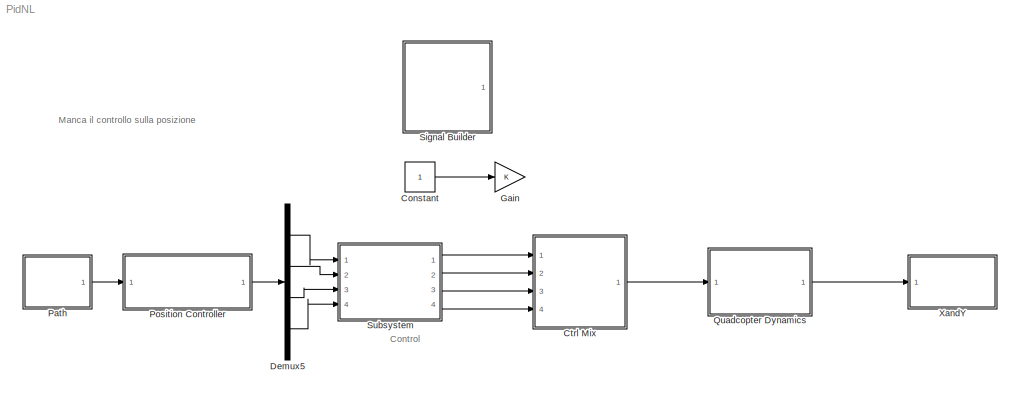
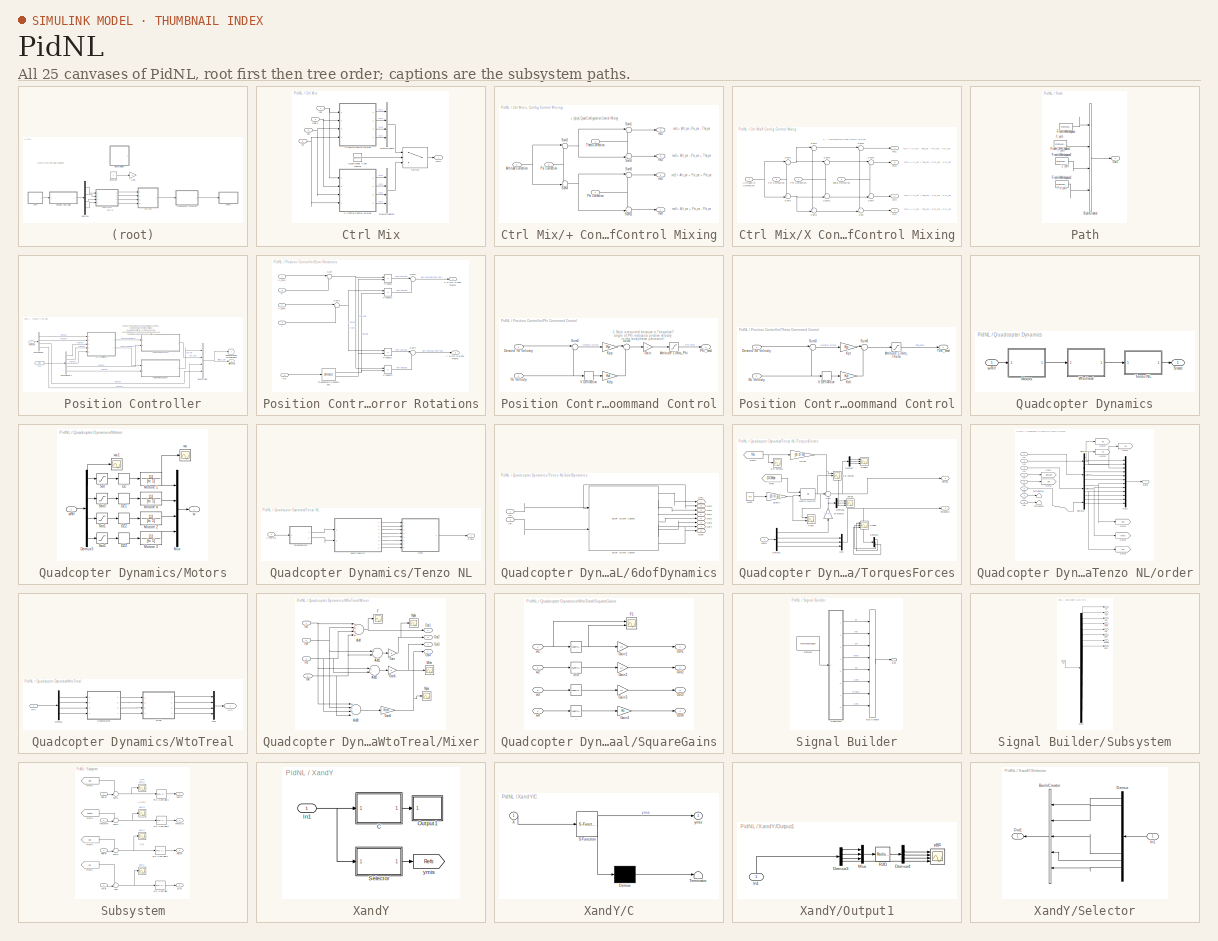
[diagram: thumbnail index - all 25 canvases of the model, root first then tree order]
MODEL PidNL
KIND model
BLOCK [Constant] Constant
  SID = 32
BLOCK [SubSystem] Ctrl Mix
  Ports = [4, 1]
  RequestExecContextInheritance = off
  SID = 288
  Variant = off
BLOCK [SubSystem] Ctrl Mix/+ Config Control Mixing
  Ports = [4, 4]
  RequestExecContextInheritance = off
  SID = 239
  Variant = off
BLOCK [Inport] Ctrl Mix/+ Config Control Mixing/Altitude Correction
  IconDisplay = Port number
  Port = 4
  SID = 243
BLOCK [Inport] Ctrl Mix/+ Config Control Mixing/Phi Correction
  IconDisplay = Port number
  SID = 240
BLOCK [Inport] Ctrl Mix/+ Config Control Mixing/Psi Correction
  IconDisplay = Port number
  Port = 3
  SID = 242
BLOCK [Sum] Ctrl Mix/+ Config Control Mixing/Sum1
  IconShape = round
  InputSameDT = off
  Inputs = |+-
  OutDataTypeStr = Inherit: Inherit via internal rule
  Ports = [2, 1]
  SID = 244
  SaturateOnIntegerOverflow = off
BLOCK [Sum] Ctrl Mix/+ Config Control Mixing/Sum11
  IconShape = round
  InputSameDT = off
  Inputs = -+|
  OutDataTypeStr = Inherit: Inherit via internal rule
  Ports = [2, 1]
  SID = 245
  SaturateOnIntegerOverflow = off
BLOCK [Sum] Ctrl Mix/+ Config Control Mixing/Sum2
  IconShape = round
  InputSameDT = off
  Inputs = |+-
  OutDataTypeStr = Inherit: Inherit via internal rule
  Ports = [2, 1]
  SID = 246
  SaturateOnIntegerOverflow = off
BLOCK [Sum] Ctrl Mix/+ Config Control Mixing/Sum3
  IconShape = round
  InputSameDT = off
  Inputs = ++|
  OutDataTypeStr = Inherit: Inherit via internal rule
  Ports = [2, 1]
  SID = 247
  SaturateOnIntegerOverflow = off
BLOCK [Sum] Ctrl Mix/+ Config Control Mixing/Sum4
  IconShape = round
  InputSameDT = off
  Inputs = ++|
  OutDataTypeStr = Inherit: Inherit via internal rule
  Ports = [2, 1]
  SID = 248
  SaturateOnIntegerOverflow = off
BLOCK [Sum] Ctrl Mix/+ Config Control Mixing/Sum8
  IconShape = round
  InputSameDT = off
  Inputs = |++
  OutDataTypeStr = Inherit: Inherit via internal rule
  Ports = [2, 1]
  SID = 249
  SaturateOnIntegerOverflow = off
BLOCK [Inport] Ctrl Mix/+ Config Control Mixing/Theta Correction
  IconDisplay = Port number
  Port = 2
  SID = 241
BLOCK [Outport] Ctrl Mix/+ Config Control Mixing/mc1
  IconDisplay = Port number
  SID = 250
BLOCK [Outport] Ctrl Mix/+ Config Control Mixing/mc2
  IconDisplay = Port number
  Port = 2
  SID = 251
BLOCK [Outport] Ctrl Mix/+ Config Control Mixing/mc3
  IconDisplay = Port number
  Port = 3
  SID = 252
BLOCK [Outport] Ctrl Mix/+ Config Control Mixing/mc4
  IconDisplay = Port number
  Port = 4
  SID = 253
BLOCK [BusCreator] Ctrl Mix/Bus\nCreator
  DisplayOption = bar
  InheritFromInputs = on
  Inputs = 4
  Ports = [4, 1]
  SID = 259
BLOCK [BusCreator] Ctrl Mix/Bus\nCreator1
  DisplayOption = bar
  InheritFromInputs = on
  Inputs = 4
  Ports = [4, 1]
  SID = 260
BLOCK [Outport] Ctrl Mix/Out1
  IconDisplay = Port number
  SID = 293
BLOCK [Constant] Ctrl Mix/Quad Model Type Logical
  SID = 262
  Value = plusConfig
BLOCK [Switch] Ctrl Mix/Switch
  Criteria = u2 ~= 0
  InputSameDT = off
  SID = 263
  SaturateOnIntegerOverflow = off
BLOCK [SubSystem] Ctrl Mix/X Config Control Mixing
  Ports = [4, 4]
  RequestExecContextInheritance = off
  SID = 264
  Variant = off
BLOCK [Inport] Ctrl Mix/X Config Control Mixing/Altitude (z) Correction
  IconDisplay = Port number
  Port = 4
  SID = 268
BLOCK [Inport] Ctrl Mix/X Config Control Mixing/Phi Correction
  IconDisplay = Port number
  SID = 265
BLOCK [Inport] Ctrl Mix/X Config Control Mixing/Psi Correction
  IconDisplay = Port number
  Port = 3
  SID = 267
BLOCK [Sum] Ctrl Mix/X Config Control Mixing/Sum
  IconShape = round
  InputSameDT = off
  Inputs = -+|
  OutDataTypeStr = Inherit: Inherit via internal rule
  Ports = [2, 1]
  SID = 269
  SaturateOnIntegerOverflow = off
BLOCK [Sum] Ctrl Mix/X Config Control Mixing/Sum1
  IconShape = round
  InputSameDT = off
  Inputs = |+-
  OutDataTypeStr = Inherit: Inherit via internal rule
  Ports = [2, 1]
  SID = 270
  SaturateOnIntegerOverflow = off
BLOCK [Sum] Ctrl Mix/X Config Control Mixing/Sum11
  IconShape = round
  InputSameDT = off
  Inputs = -+|
  OutDataTypeStr = Inherit: Inherit via internal rule
  Ports = [2, 1]
  SID = 271
  SaturateOnIntegerOverflow = off
BLOCK [Sum] Ctrl Mix/X Config Control Mixing/Sum2
  IconShape = round
  InputSameDT = off
  Inputs = |+-
  OutDataTypeStr = Inherit: Inherit via internal rule
  Ports = [2, 1]
  SID = 272
  SaturateOnIntegerOverflow = off
BLOCK [Sum] Ctrl Mix/X Config Control Mixing/Sum3
  IconShape = round
  InputSameDT = off
  Inputs = ++|
  OutDataTypeStr = Inherit: Inherit via internal rule
  Ports = [2, 1]
  SID = 273
  SaturateOnIntegerOverflow = off
BLOCK [Sum] Ctrl Mix/X Config Control Mixing/Sum4
  IconShape = round
  InputSameDT = off
  Inputs = ++|
  OutDataTypeStr = Inherit: Inherit via internal rule
  Ports = [2, 1]
  SID = 274
  SaturateOnIntegerOverflow = off
BLOCK [Sum] Ctrl Mix/X Config Control Mixing/Sum5
  IconShape = round
  InputSameDT = off
  Inputs = |+-
  OutDataTypeStr = Inherit: Inherit via internal rule
  Ports = [2, 1]
  SID = 275
  SaturateOnIntegerOverflow = off
BLOCK [Sum] Ctrl Mix/X Config Control Mixing/Sum6
  IconShape = round
  InputSameDT = off
  Inputs = |++
  OutDataTypeStr = Inherit: Inherit via internal rule
  Ports = [2, 1]
  SID = 276
  SaturateOnIntegerOverflow = off
BLOCK [Sum] Ctrl Mix/X Config Control Mixing/Sum7
  IconShape = round
  InputSameDT = off
  Inputs = ++|
  OutDataTypeStr = Inherit: Inherit via internal rule
  Ports = [2, 1]
  SID = 277
  SaturateOnIntegerOverflow = off
BLOCK [Sum] Ctrl Mix/X Config Control Mixing/Sum8
  IconShape = round
  InputSameDT = off
  Inputs = |++
  OutDataTypeStr = Inherit: Inherit via internal rule
  Ports = [2, 1]
  SID = 278
  SaturateOnIntegerOverflow = off
BLOCK [Inport] Ctrl Mix/X Config Control Mixing/Theta Correction
  IconDisplay = Port number
  Port = 2
  SID = 266
BLOCK [Outport] Ctrl Mix/X Config Control Mixing/mc1
  IconDisplay = Port number
  SID = 279
BLOCK [Outport] Ctrl Mix/X Config Control Mixing/mc2
  IconDisplay = Port number
  Port = 2
  SID = 280
BLOCK [Outport] Ctrl Mix/X Config Control Mixing/mc3
  IconDisplay = Port number
  Port = 3
  SID = 281
BLOCK [Outport] Ctrl Mix/X Config Control Mixing/mc4
  IconDisplay = Port number
  Port = 4
  SID = 282
BLOCK [Inport] Ctrl Mix/phi
  IconDisplay = Port number
  SID = 289
BLOCK [Inport] Ctrl Mix/psi
  IconDisplay = Port number
  Port = 3
  SID = 291
BLOCK [Inport] Ctrl Mix/theta
  IconDisplay = Port number
  Port = 2
  SID = 290
BLOCK [Inport] Ctrl Mix/ze
  IconDisplay = Port number
  Port = 4
  SID = 292
BLOCK [Demux] Demux5
  DisplayOption = bar
  Ports = [1, 4]
  SID = 381
BLOCK [Gain] Gain
  OutDataTypeStr = Inherit: Inherit via internal rule
  ParamDataTypeStr = Inherit: Inherit via internal rule
  SID = 33
  SaturateOnIntegerOverflow = off
BLOCK [SubSystem] Path
  Ports = [0, 1]
  RequestExecContextInheritance = off
  SID = 392
  Variant = off
BLOCK [BusCreator] Path/Bus\nCreator
  DisplayOption = bar
  InheritFromInputs = on
  Inputs = 4
  Ports = [4, 1]
  SID = 400
BLOCK [FromWorkspace] Path/From\nWorkspace
  SID = 396
  SampleTime = 0
  VariableName = path.x
  ZeroCross = on
BLOCK [FromWorkspace] Path/From\nWorkspace1
  SID = 397
  SampleTime = 0
  VariableName = path.y
  ZeroCross = on
BLOCK [FromWorkspace] Path/From\nWorkspace2
  SID = 398
  SampleTime = 0
  VariableName = path.z
  ZeroCross = on
BLOCK [FromWorkspace] Path/From\nWorkspace3
  SID = 399
  SampleTime = 0
  VariableName = path.psi
  ZeroCross = on
BLOCK [Outport] Path/Out1
  IconDisplay = Port number
  SID = 393
BLOCK [SubSystem] Position Controller
  Ports = [1, 1]
  RequestExecContextInheritance = off
  SID = 329
  Variant = off
BLOCK [Outport] Position Controller/Attitude Cmd
  IconDisplay = Port number
  SID = 375
BLOCK [BusCreator] Position Controller/Bus\nCreator
  DisplayOption = bar
  InheritFromInputs = on
  Inputs = 4
  Ports = [4, 1]
  SID = 332
BLOCK [BusSelector] Position Controller/Bus\nSelector
  OutputSignals = signal1,signal2,signal3,signal4
  Ports = [1, 4]
  SID = 333
BLOCK [BusSelector] Position Controller/Bus\nSelector1
  OutputSignals = signal1,signal2,signal3,signal4,signal5
  Ports = [1, 5]
  SID = 334
BLOCK [SubSystem] Position Controller/Error Rotations
  Ports = [5, 2]
  RequestExecContextInheritance = off
  SID = 335
  Variant = off
BLOCK [Product] Position Controller/Error Rotations/Product
  InputSameDT = off
  OutDataTypeStr = Inherit: Inherit via internal rule
  Ports = [2, 1]
  RndMeth = Floor
  SID = 341
  SaturateOnIntegerOverflow = off
BLOCK [Product] Position Controller/Error Rotations/Product1
  InputSameDT = off
  OutDataTypeStr = Inherit: Inherit via internal rule
  Ports = [2, 1]
  RndMeth = Floor
  SID = 342
  SaturateOnIntegerOverflow = off
BLOCK [Product] Position Controller/Error Rotations/Product2
  InputSameDT = off
  OutDataTypeStr = Inherit: Inherit via internal rule
  Ports = [2, 1]
  RndMeth = Floor
  SID = 343
  SaturateOnIntegerOverflow = off
BLOCK [Product] Position Controller/Error Rotations/Product3
  InputSameDT = off
  OutDataTypeStr = Inherit: Inherit via internal rule
  Ports = [2, 1]
  RndMeth = Floor
  SID = 344
  SaturateOnIntegerOverflow = off
BLOCK [Inport] Position Controller/Error Rotations/Psi
  IconDisplay = Port number
  Port = 5
  SID = 340
BLOCK [Sum] Position Controller/Error Rotations/Sum
  IconShape = round
  InputSameDT = off
  Inputs = |+-
  OutDataTypeStr = Inherit: Inherit via internal rule
  Ports = [2, 1]
  SID = 345
  SaturateOnIntegerOverflow = off
BLOCK [Sum] Position Controller/Error Rotations/Sum1
  IconShape = round
  InputSameDT = off
  Inputs = |+-
  OutDataTypeStr = Inherit: Inherit via internal rule
  Ports = [2, 1]
  SID = 346
  SaturateOnIntegerOverflow = off
BLOCK [Sum] Position Controller/Error Rotations/Sum2
  IconShape = round
  InputSameDT = off
  Inputs = |++
  OutDataTypeStr = Inherit: Inherit via internal rule
  Ports = [2, 1]
  SID = 347
  SaturateOnIntegerOverflow = off
BLOCK [Sum] Position Controller/Error Rotations/Sum4
  IconShape = round
  InputSameDT = off
  Inputs = |+-
  OutDataTypeStr = Inherit: Inherit via internal rule
  Ports = [2, 1]
  SID = 348
  SaturateOnIntegerOverflow = off
BLOCK [Trigonometry] Position Controller/Error Rotations/Trigonometric\nFunctions
  Operator = sincos
  Ports = [1, 2]
  SID = 349
BLOCK [Inport] Position Controller/Error Rotations/X
  IconDisplay = Port number
  Port = 3
  SID = 338
BLOCK [Outport] Position Controller/Error Rotations/X Error in body Frame
  IconDisplay = Port number
  SID = 350
BLOCK [Inport] Position Controller/Error Rotations/X_cmd
  IconDisplay = Port number
  SID = 336
BLOCK [Inport] Position Controller/Error Rotations/Y
  IconDisplay = Port number
  Port = 4
  SID = 339
BLOCK [Outport] Position Controller/Error Rotations/Y Error in Body Frame
  IconDisplay = Port number
  Port = 2
  SID = 351
BLOCK [Inport] Position Controller/Error Rotations/Y_cmd
  IconDisplay = Port number
  Port = 2
  SID = 337
BLOCK [Goto] Position Controller/Goto Quadcopter Dynamics Block
  SID = 352
  TagVisibility = global
BLOCK [Inport] Position Controller/Path Cmd
  IconDisplay = Port number
  SID = 330
BLOCK [SubSystem] Position Controller/Phi Command Control
  Ports = [2, 1]
  RequestExecContextInheritance = off
  SID = 353
  Variant = off
BLOCK [Saturate] Position Controller/Phi Command Control/Attitude Limits_Phi
  InputPortMap = u0
  LowerLimit = -ASat
  Ports = [1, 1]
  SID = 356
  UpperLimit = ASat
BLOCK [Inport] Position Controller/Phi Command Control/Desired Yb Velocity
  IconDisplay = Port number
  SID = 354
BLOCK [Gain] Position Controller/Phi Command Control/Gain
  Gain = -1
  OutDataTypeStr = Inherit: Inherit via internal rule
  ParamDataTypeStr = Inherit: Inherit via internal rule
  SID = 357
  SaturateOnIntegerOverflow = off
BLOCK [Gain] Position Controller/Phi Command Control/Kdp
  Gain = Kd
  OutDataTypeStr = Inherit: Inherit via internal rule
  ParamDataTypeStr = Inherit: Inherit via internal rule
  SID = 358
  SaturateOnIntegerOverflow = off
BLOCK [Gain] Position Controller/Phi Command Control/Kpp
  Gain = Kp
  OutDataTypeStr = Inherit: Inherit via internal rule
  ParamDataTypeStr = Inherit: Inherit via internal rule
  SID = 359
  SaturateOnIntegerOverflow = off
BLOCK [Outport] Position Controller/Phi Command Control/Phi_cmd
  IconDisplay = Port number
  SID = 363
BLOCK [Sum] Position Controller/Phi Command Control/Sum3
  IconShape = round
  InputSameDT = off
  Inputs = |+-
  OutDataTypeStr = Inherit: Inherit via internal rule
  Ports = [2, 1]
  SID = 360
  SaturateOnIntegerOverflow = off
BLOCK [Sum] Position Controller/Phi Command Control/Sum6
  IconShape = round
  InputSameDT = off
  Inputs = |+-
  OutDataTypeStr = Inherit: Inherit via internal rule
  Ports = [2, 1]
  SID = 361
  SaturateOnIntegerOverflow = off
BLOCK [Derivative] Position Controller/Phi Command Control/V Derivative
  SID = 362
BLOCK [Inport] Position Controller/Phi Command Control/Yb Velocity
  IconDisplay = Port number
  Port = 2
  SID = 355
BLOCK [SubSystem] Position Controller/Theta Command Control
  Ports = [2, 1]
  RequestExecContextInheritance = off
  SID = 365
  Variant = off
BLOCK [Saturate] Position Controller/Theta Command Control/Attitude Limits_Theta
  InputPortMap = u0
  LowerLimit = -ASat
  Ports = [1, 1]
  SID = 368
  UpperLimit = ASat
BLOCK [Inport] Position Controller/Theta Command Control/Desired Xb Velocity
  IconDisplay = Port number
  SID = 366
BLOCK [Gain] Position Controller/Theta Command Control/Kdt
  Gain = Kd
  OutDataTypeStr = Inherit: Inherit via internal rule
  ParamDataTypeStr = Inherit: Inherit via internal rule
  SID = 369
  SaturateOnIntegerOverflow = off
BLOCK [Gain] Position Controller/Theta Command Control/Kpt
  Gain = Kp
  OutDataTypeStr = Inherit: Inherit via internal rule
  ParamDataTypeStr = Inherit: Inherit via internal rule
  SID = 370
  SaturateOnIntegerOverflow = off
BLOCK [Sum] Position Controller/Theta Command Control/Sum3
  IconShape = round
  InputSameDT = off
  Inputs = |+-
  OutDataTypeStr = Inherit: Inherit via internal rule
  Ports = [2, 1]
  SID = 371
  SaturateOnIntegerOverflow = off
BLOCK [Sum] Position Controller/Theta Command Control/Sum6
  IconShape = round
  InputSameDT = off
  Inputs = |+-
  OutDataTypeStr = Inherit: Inherit via internal rule
  Ports = [2, 1]
  SID = 372
  SaturateOnIntegerOverflow = off
BLOCK [Outport] Position Controller/Theta Command Control/The_cmd
  IconDisplay = Port number
  SID = 374
BLOCK [Derivative] Position Controller/Theta Command Control/U Derivative
  SID = 373
BLOCK [Inport] Position Controller/Theta Command Control/Xb Velocity
  IconDisplay = Port number
  Port = 2
  SID = 367
BLOCK [From] Position Controller/y(t)
  GotoTag = ymis
  SID = 463
  TagVisibility = global
BLOCK [SubSystem] Quadcopter Dynamics
  Ports = [1, 1]
  RequestExecContextInheritance = off
  SID = 236
  Variant = off
BLOCK [SubSystem] Quadcopter Dynamics/Motors
  Ports = [1, 1]
  RequestExecContextInheritance = off
  SID = 217
  Variant = off
BLOCK [DeadZone] Quadcopter Dynamics/Motors/DZ
  LowerValue = 0
  SID = 219
  UpperValue = 10
BLOCK [DeadZone] Quadcopter Dynamics/Motors/DZ1
  LowerValue = 0
  SID = 220
  UpperValue = 300
BLOCK [DeadZone] Quadcopter Dynamics/Motors/DZ2
  LowerValue = 0
  SID = 221
  UpperValue = 300
BLOCK [DeadZone] Quadcopter Dynamics/Motors/DZ3
  LowerValue = 0
  SID = 222
  UpperValue = 300
BLOCK [Demux] Quadcopter Dynamics/Motors/Demux5
  DisplayOption = bar
  Ports = [1, 4]
  SID = 223
BLOCK [TransferFcn] Quadcopter Dynamics/Motors/Motore 1
  Denominator = [tc 1]
  SID = 224
BLOCK [TransferFcn] Quadcopter Dynamics/Motors/Motore 2
  Denominator = [tc 1]
  SID = 225
BLOCK [TransferFcn] Quadcopter Dynamics/Motors/Motore 3
  Denominator = [tc 1]
  SID = 226
BLOCK [TransferFcn] Quadcopter Dynamics/Motors/Motore 4
  Denominator = [tc 1]
  SID = 227
BLOCK [Mux] Quadcopter Dynamics/Motors/Mux
  DisplayOption = bar
  Ports = [4, 1]
  SID = 228
BLOCK [Saturate] Quadcopter Dynamics/Motors/Sat
  InputPortMap = u0
  LowerLimit = 0
  Ports = [1, 1]
  SID = 229
  UpperLimit = 10000
BLOCK [Saturate] Quadcopter Dynamics/Motors/Sat1
  InputPortMap = u0
  LowerLimit = 0
  Ports = [1, 1]
  SID = 230
  UpperLimit = 10000
BLOCK [Saturate] Quadcopter Dynamics/Motors/Sat2
  InputPortMap = u0
  LowerLimit = 0
  Ports = [1, 1]
  SID = 231
  UpperLimit = 10000
BLOCK [Saturate] Quadcopter Dynamics/Motors/Sat3
  InputPortMap = u0
  LowerLimit = 0
  Ports = [1, 1]
  SID = 232
  UpperLimit = 10000
BLOCK [Outport] Quadcopter Dynamics/Motors/w
  IconDisplay = Port number
  SID = 234
BLOCK [Inport] Quadcopter Dynamics/Motors/wRif
  IconDisplay = Port number
  SID = 218
BLOCK [Scope] Quadcopter Dynamics/Motors/ws
  Ports = [1]
  SID = 233
  ScopeSpecificationString = C++SS(StrPVP('Location','[54, 53, 1367, 767]'),StrPVP('Open','off'),MxPVP('AxesTitles',24,'struct(''axes1'',''%<SignalLabel>'')'),MxPVP('ScopeGraphics',28,'struct(''FigureColor'',''[0.501960784313725 0.501960784313725 0.501960784313725]'',''AxesColor'',''[0 0 0]'',''AxesTickColor'',''[1 1 1]'',''LineColors'',''[0 1 0;1 0 1;0 1 1;1 0 0;0 1 0;0 0 1]'',''LineStyles'',''-|-|-|-|-|-'',''LineWidths'',''...<+333ch>
BLOCK [Scope] Quadcopter Dynamics/Motors/ws1
  Ports = [1]
  SID = 235
  ScopeSpecificationString = C++SS(StrPVP('Location','[54, 53, 1367, 767]'),StrPVP('Open','off'),MxPVP('AxesTitles',24,'struct(''axes1'',''%<SignalLabel>'')'),MxPVP('ScopeGraphics',28,'struct(''FigureColor'',''[0.501960784313725 0.501960784313725 0.501960784313725]'',''AxesColor'',''[0 0 0]'',''AxesTickColor'',''[1 1 1]'',''LineColors'',''[0 1 0;1 0 1;0 1 1;1 0 0;0 1 0;0 0 1]'',''LineStyles'',''-|-|-|-|-|-'',''LineWidths'',''...<+300ch>
BLOCK [Outport] Quadcopter Dynamics/State
  IconDisplay = Port number
  SID = 238
BLOCK [SubSystem] Quadcopter Dynamics/Tenzo NL
  Ports = [1, 1]
  RequestExecContextInheritance = off
  SID = 53
  Variant = off
BLOCK [SubSystem] Quadcopter Dynamics/Tenzo NL/6dofDynamics
  Ports = [2, 8]
  RequestExecContextInheritance = off
  SID = 418
  Variant = off
BLOCK [Reference] Quadcopter Dynamics/Tenzo NL/6dofDynamics/6DoF (Euler Angles)  REF=aerolibobsolete/6DoF (Euler Angles)
  Ports = [2, 8]
  SID = 55
  SourceBlock = aerolibobsolete/6DoF (Euler Angles)
  SourceType = 6DoF EoM (Body Axis)
  Vm_0 = [0 0 0]
  eul_0 = [phi0 0 psi0]
  inertia = II
  inertia_e = eye(3)
  inertia_f = 2*eye(3)
  k_quat = 1.0
  mass_0 = mq
  mass_e = 0.5
  mass_f = 2.0
  mtype = Fixed
  pm_0 = [0 0 0]
  rep = Euler Angles
  units = Metric (MKS)
  xme_0 = [0 0 ze0]
BLOCK [Inport] Quadcopter Dynamics/Tenzo NL/6dofDynamics/In1
  IconDisplay = Port number
  SID = 419
BLOCK [Inport] Quadcopter Dynamics/Tenzo NL/6dofDynamics/In2
  IconDisplay = Port number
  Port = 2
  SID = 420
BLOCK [Outport] Quadcopter Dynamics/Tenzo NL/6dofDynamics/Out1
  IconDisplay = Port number
  SID = 421
BLOCK [Outport] Quadcopter Dynamics/Tenzo NL/6dofDynamics/Out2
  IconDisplay = Port number
  Port = 2
  SID = 422
BLOCK [Outport] Quadcopter Dynamics/Tenzo NL/6dofDynamics/Out3
  IconDisplay = Port number
  Port = 3
  SID = 423
BLOCK [Outport] Quadcopter Dynamics/Tenzo NL/6dofDynamics/Out4
  IconDisplay = Port number
  Port = 4
  SID = 424
BLOCK [Outport] Quadcopter Dynamics/Tenzo NL/6dofDynamics/Out5
  IconDisplay = Port number
  Port = 5
  SID = 425
BLOCK [Outport] Quadcopter Dynamics/Tenzo NL/6dofDynamics/Out6
  IconDisplay = Port number
  Port = 6
  SID = 426
BLOCK [Outport] Quadcopter Dynamics/Tenzo NL/6dofDynamics/Out7
  IconDisplay = Port number
  Port = 7
  SID = 427
BLOCK [Outport] Quadcopter Dynamics/Tenzo NL/6dofDynamics/Out8
  IconDisplay = Port number
  Port = 8
  SID = 428
BLOCK [Outport] Quadcopter Dynamics/Tenzo NL/State
  IconDisplay = Port number
  SID = 85
BLOCK [SubSystem] Quadcopter Dynamics/Tenzo NL/TorquesForces
  Ports = [1, 2]
  RequestExecContextInheritance = off
  SID = 414
  Variant = off
BLOCK [Demux] Quadcopter Dynamics/Tenzo NL/TorquesForces/Demux1
  DisplayOption = bar
  Ports = [1, 4]
  SID = 57
BLOCK [Demux] Quadcopter Dynamics/Tenzo NL/TorquesForces/Demux2
  DisplayOption = bar
  Outputs = 3
  Ports = [1, 3]
  SID = 58
BLOCK [Demux] Quadcopter Dynamics/Tenzo NL/TorquesForces/Demux6
  DisplayOption = bar
  Outputs = 3
  Ports = [1, 3]
  SID = 62
BLOCK [Demux] Quadcopter Dynamics/Tenzo NL/TorquesForces/Demux7
  DisplayOption = bar
  Outputs = 3
  Ports = [1, 3]
  SID = 63
BLOCK [Scope] Quadcopter Dynamics/Tenzo NL/TorquesForces/Ext Forces
  NumInputPorts = 3
  Ports = [3]
  SID = 64
  ScopeSpecificationString = C++SS(StrPVP('Location','[54, 53, 1367, 767]'),StrPVP('Open','off'),MxPVP('AxesTitles',24,'struct(''axes1'',''%<SignalLabel>'',''axes2'',''%<SignalLabel>'',''axes3'',''%<SignalLabel>'')'),MxPVP('ScopeGraphics',28,'struct(''FigureColor'',''[0.5 0.5 0.5]'',''AxesColor'',''[0 0 0]'',''AxesTickColor'',''[1 1 1]'',''LineColors'',''[1 1 0;1 0 1;0 1 1;1 0 0;0 1 0;0 0 1]'',''LineStyles'',''-|-|-|-|-|-'','...<+381ch>
BLOCK [Scope] Quadcopter Dynamics/Tenzo NL/TorquesForces/Ext Forces1
  Ports = [1]
  SID = 65
  ScopeSpecificationString = C++SS(StrPVP('Location','[54, 53, 1367, 767]'),StrPVP('Open','off'),StrPVP('ZoomMode','yonly'),MxPVP('AxesTitles',24,'struct(''axes1'',''%<SignalLabel>'')'),MxPVP('ScopeGraphics',28,'struct(''FigureColor'',''[0.5 0.5 0.5]'',''AxesColor'',''[0 0 0]'',''AxesTickColor'',''[1 1 1]'',''LineColors'',''[1 1 0;1 0 1;0 1 1;1 0 0;0 1 0;0 0 1]'',''LineStyles'',''-|-|-|-|-|-'',''LineWidths'',''[0.5 0.5 0.5 0....<+341ch>
BLOCK [Outport] Quadcopter Dynamics/Tenzo NL/TorquesForces/Forces
  IconDisplay = Port number
  SID = 416
BLOCK [From] Quadcopter Dynamics/Tenzo NL/TorquesForces/From
  GotoTag = DCMbe
  SID = 66
BLOCK [From] Quadcopter Dynamics/Tenzo NL/TorquesForces/From1
  GotoTag = Vb
  SID = 67
BLOCK [Gain] Quadcopter Dynamics/Tenzo NL/TorquesForces/Inflow
  Gain = [0 0 If]
  OutDataTypeStr = Inherit: Inherit via internal rule
  ParamDataTypeStr = Inherit: Inherit via internal rule
  SID = 70
  SaturateOnIntegerOverflow = off
BLOCK [Inport] Quadcopter Dynamics/Tenzo NL/TorquesForces/Inputs
  IconDisplay = Port number
  SID = 415
BLOCK [Constant] Quadcopter Dynamics/Tenzo NL/TorquesForces/Mass
  SID = 71
  Value = mq
BLOCK [Product] Quadcopter Dynamics/Tenzo NL/TorquesForces/Matrix Multiply
  InputSameDT = off
  Multiplication = Matrix(*)
  OutDataTypeStr = Inherit: Inherit via internal rule
  Ports = [2, 1]
  RndMeth = Floor
  SID = 72
  SaturateOnIntegerOverflow = off
BLOCK [Mux] Quadcopter Dynamics/Tenzo NL/TorquesForces/Mux
  DisplayOption = bar
  Inputs = 3
  Ports = [3, 1]
  SID = 73
BLOCK [Scope] Quadcopter Dynamics/Tenzo NL/TorquesForces/Peso
  NumInputPorts = 2
  Ports = [2]
  SID = 75
  ScopeSpecificationString = C++SS(StrPVP('Location','[54, 53, 1367, 767]'),StrPVP('Open','off'),MxPVP('AxesTitles',24,'struct(''axes1'',''%<SignalLabel>'',''axes2'',''%<SignalLabel>'')'),MxPVP('ScopeGraphics',28,'struct(''FigureColor'',''[0.5 0.5 0.5]'',''AxesColor'',''[0 0 0]'',''AxesTickColor'',''[1 1 1]'',''LineColors'',''[1 1 0;1 0 1;0 1 1;1 0 0;0 1 0;0 0 1]'',''LineStyles'',''-|-|-|-|-|-'',''LineWidths'',''[0.5 0.5 0.5 ...<+343ch>
BLOCK [Scope] Quadcopter Dynamics/Tenzo NL/TorquesForces/Scope
  NumInputPorts = 3
  Ports = [3]
  SID = 76
  ScopeSpecificationString = C++SS(StrPVP('Location','[54, 53, 1367, 767]'),StrPVP('Open','off'),StrPVP('ZoomMode','yonly'),MxPVP('AxesTitles',24,'struct(''axes1'',''%<SignalLabel>'',''axes2'',''%<SignalLabel>'',''axes3'',''%<SignalLabel>'')'),MxPVP('ScopeGraphics',28,'struct(''FigureColor'',''[0.5 0.5 0.5]'',''AxesColor'',''[0 0 0]'',''AxesTickColor'',''[1 1 1]'',''LineColors'',''[1 1 0;1 0 1;0 1 1;1 0 0;0 1 0;0 0 1]'',''Lin...<+401ch>
BLOCK [Scope] Quadcopter Dynamics/Tenzo NL/TorquesForces/Scope2
  NumInputPorts = 3
  Ports = [3]
  SID = 77
  ScopeSpecificationString = C++SS(StrPVP('Location','[54, 53, 1367, 767]'),StrPVP('Open','off'),StrPVP('ZoomMode','xonly'),MxPVP('AxesTitles',24,'struct(''axes1'',''%<SignalLabel>'',''axes2'',''%<SignalLabel>'',''axes3'',''%<SignalLabel>'')'),MxPVP('ScopeGraphics',28,'struct(''FigureColor'',''[0.5 0.5 0.5]'',''AxesColor'',''[0 0 0]'',''AxesTickColor'',''[1 1 1]'',''LineColors'',''[1 1 0;1 0 1;0 1 1;1 0 0;0 1 0;0 0 1]'',''Lin...<+383ch>
BLOCK [Sum] Quadcopter Dynamics/Tenzo NL/TorquesForces/Sum
  IconShape = round
  InputSameDT = off
  Inputs = ++-
  OutDataTypeStr = Inherit: Inherit via internal rule
  Ports = [3, 1]
  SID = 78
  SaturateOnIntegerOverflow = off
BLOCK [Scope] Quadcopter Dynamics/Tenzo NL/TorquesForces/Thrust
  NumInputPorts = 3
  Ports = [3]
  SID = 82
  ScopeSpecificationString = C++SS(StrPVP('Location','[54, 53, 1367, 767]'),StrPVP('Open','off'),StrPVP('ZoomMode','xonly'),MxPVP('AxesTitles',24,'struct(''axes1'',''%<SignalLabel>'',''axes2'',''%<SignalLabel>'',''axes3'',''%<SignalLabel>'')'),MxPVP('ScopeGraphics',28,'struct(''FigureColor'',''[0.5 0.5 0.5]'',''AxesColor'',''[0 0 0]'',''AxesTickColor'',''[1 1 1]'',''LineColors'',''[1 1 0;1 0 1;0 1 1;1 0 0;0 1 0;0 0 1]'',''Lin...<+382ch>
BLOCK [Outport] Quadcopter Dynamics/Tenzo NL/TorquesForces/Torques\n
  IconDisplay = Port number
  Port = 2
  SID = 417
BLOCK [Gain] Quadcopter Dynamics/Tenzo NL/TorquesForces/gravity
  Gain = [0 0 g]
  OutDataTypeStr = Inherit: Inherit via internal rule
  ParamDataTypeStr = Inherit: Inherit via internal rule
  SID = 83
  SaturateOnIntegerOverflow = off
BLOCK [Gain] Quadcopter Dynamics/Tenzo NL/TorquesForces/zSelector
  Gain = [0 0 1]
  OutDataTypeStr = Inherit: Inherit via internal rule
  ParamDataTypeStr = Inherit: Inherit via internal rule
  SID = 84
  SaturateOnIntegerOverflow = off
BLOCK [Inport] Quadcopter Dynamics/Tenzo NL/Yinertial
  IconDisplay = Port number
  SID = 54
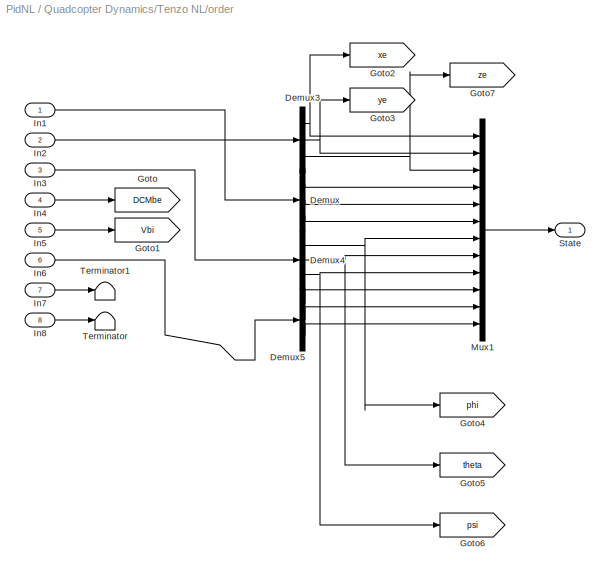
BLOCK [SubSystem] Quadcopter Dynamics/Tenzo NL/order
  Ports = [8, 1]
  RequestExecContextInheritance = off
  SID = 404
  Variant = off
BLOCK [Demux] Quadcopter Dynamics/Tenzo NL/order/Demux
  DisplayOption = bar
  Outputs = 3
  Ports = [1, 3]
  SID = 56
BLOCK [Demux] Quadcopter Dynamics/Tenzo NL/order/Demux3
  DisplayOption = bar
  Outputs = 3
  Ports = [1, 3]
  SID = 59
BLOCK [Demux] Quadcopter Dynamics/Tenzo NL/order/Demux4
  DisplayOption = bar
  Outputs = 3
  Ports = [1, 3]
  SID = 60
BLOCK [Demux] Quadcopter Dynamics/Tenzo NL/order/Demux5
  DisplayOption = bar
  Outputs = 3
  Ports = [1, 3]
  SID = 61
BLOCK [Goto] Quadcopter Dynamics/Tenzo NL/order/Goto
  GotoTag = DCMbe
  SID = 68
BLOCK [Goto] Quadcopter Dynamics/Tenzo NL/order/Goto1
  GotoTag = Vbi
  SID = 69
BLOCK [Goto] Quadcopter Dynamics/Tenzo NL/order/Goto2
  GotoTag = xe
  SID = 215
BLOCK [Goto] Quadcopter Dynamics/Tenzo NL/order/Goto3
  GotoTag = ye
  SID = 216
BLOCK [Goto] Quadcopter Dynamics/Tenzo NL/order/Goto4
  GotoTag = phi
  SID = 311
BLOCK [Goto] Quadcopter Dynamics/Tenzo NL/order/Goto5
  GotoTag = theta
  SID = 312
BLOCK [Goto] Quadcopter Dynamics/Tenzo NL/order/Goto6
  GotoTag = psi
  SID = 313
BLOCK [Goto] Quadcopter Dynamics/Tenzo NL/order/Goto7
  GotoTag = ze
  SID = 314
BLOCK [Inport] Quadcopter Dynamics/Tenzo NL/order/In1
  IconDisplay = Port number
  SID = 405
BLOCK [Inport] Quadcopter Dynamics/Tenzo NL/order/In2
  IconDisplay = Port number
  Port = 2
  SID = 406
BLOCK [Inport] Quadcopter Dynamics/Tenzo NL/order/In3
  IconDisplay = Port number
  Port = 3
  SID = 407
BLOCK [Inport] Quadcopter Dynamics/Tenzo NL/order/In4
  IconDisplay = Port number
  Port = 4
  SID = 408
BLOCK [Inport] Quadcopter Dynamics/Tenzo NL/order/In5
  IconDisplay = Port number
  Port = 5
  SID = 409
BLOCK [Inport] Quadcopter Dynamics/Tenzo NL/order/In6
  IconDisplay = Port number
  Port = 6
  SID = 410
BLOCK [Inport] Quadcopter Dynamics/Tenzo NL/order/In7
  IconDisplay = Port number
  Port = 7
  SID = 411
BLOCK [Inport] Quadcopter Dynamics/Tenzo NL/order/In8
  IconDisplay = Port number
  Port = 8
  SID = 412
BLOCK [Mux] Quadcopter Dynamics/Tenzo NL/order/Mux1
  DisplayOption = bar
  Inputs = 12
  Ports = [12, 1]
  SID = 74
BLOCK [Outport] Quadcopter Dynamics/Tenzo NL/order/State
  IconDisplay = Port number
  SID = 413
BLOCK [Terminator] Quadcopter Dynamics/Tenzo NL/order/Terminator
  SID = 80
BLOCK [Terminator] Quadcopter Dynamics/Tenzo NL/order/Terminator1
  SID = 81
BLOCK [SubSystem] Quadcopter Dynamics/WtoTreal
  Ports = [1, 1]
  RequestExecContextInheritance = off
  SID = 144
  Variant = off
BLOCK [Demux] Quadcopter Dynamics/WtoTreal/Demux
  DisplayOption = bar
  Ports = [1, 4]
  SID = 150
BLOCK [SubSystem] Quadcopter Dynamics/WtoTreal/Mixer
  Ports = [4, 4]
  RequestExecContextInheritance = off
  SID = 429
  Variant = off
BLOCK [Sum] Quadcopter Dynamics/WtoTreal/Mixer/Add
  InputSameDT = off
  Inputs = ++++
  OutDataTypeStr = Inherit: Inherit via internal rule
  Ports = [4, 1]
  SID = 146
  SaturateOnIntegerOverflow = off
BLOCK [Sum] Quadcopter Dynamics/WtoTreal/Mixer/Add1
  InputSameDT = off
  Inputs = +-
  OutDataTypeStr = Inherit: Inherit via internal rule
  Ports = [2, 1]
  SID = 147
  SaturateOnIntegerOverflow = off
BLOCK [Sum] Quadcopter Dynamics/WtoTreal/Mixer/Add2
  InputSameDT = off
  Inputs = +-
  OutDataTypeStr = Inherit: Inherit via internal rule
  Ports = [2, 1]
  SID = 148
  SaturateOnIntegerOverflow = off
BLOCK [Sum] Quadcopter Dynamics/WtoTreal/Mixer/Add3
  InputSameDT = off
  Inputs = +-+-
  OutDataTypeStr = Inherit: Inherit via internal rule
  Ports = [4, 1]
  SID = 149
  SaturateOnIntegerOverflow = off
BLOCK [Scope] Quadcopter Dynamics/WtoTreal/Mixer/F
  Ports = [1]
  SID = 151
  ScopeSpecificationString = C++SS(StrPVP('Location','[54, 53, 1367, 767]'),StrPVP('Open','off'),StrPVP('ZoomMode','yonly'),MxPVP('AxesTitles',24,'struct(''axes1'',''%<SignalLabel>'')'),MxPVP('ScopeGraphics',28,'struct(''FigureColor'',''[0.5 0.5 0.5]'',''AxesColor'',''[0 0 0]'',''AxesTickColor'',''[1 1 1]'',''LineColors'',''[1 1 0;1 0 1;0 1 1;1 0 0;0 1 0;0 0 1]'',''LineStyles'',''-|-|-|-|-|-'',''LineWidths'',''[0.5 0.5 0.5 0....<+335ch>
BLOCK [Gain] Quadcopter Dynamics/WtoTreal/Mixer/Gain
  Gain = lx
  OutDataTypeStr = Inherit: Inherit via internal rule
  ParamDataTypeStr = Inherit: Inherit via internal rule
  SID = 153
  SaturateOnIntegerOverflow = off
BLOCK [Gain] Quadcopter Dynamics/WtoTreal/Mixer/Gain5
  Gain = ly
  OutDataTypeStr = Inherit: Inherit via internal rule
  ParamDataTypeStr = Inherit: Inherit via internal rule
  SID = 158
  SaturateOnIntegerOverflow = off
BLOCK [Gain] Quadcopter Dynamics/WtoTreal/Mixer/Gain6
  Gain = Ktm
  OutDataTypeStr = Inherit: Inherit via internal rule
  ParamDataTypeStr = Inherit: Inherit via internal rule
  SID = 159
  SaturateOnIntegerOverflow = off
BLOCK [Inport] Quadcopter Dynamics/WtoTreal/Mixer/In1
  IconDisplay = Port number
  SID = 430
BLOCK [Inport] Quadcopter Dynamics/WtoTreal/Mixer/In2
  IconDisplay = Port number
  Port = 2
  SID = 431
BLOCK [Inport] Quadcopter Dynamics/WtoTreal/Mixer/In3
  IconDisplay = Port number
  Port = 3
  SID = 432
BLOCK [Inport] Quadcopter Dynamics/WtoTreal/Mixer/In4
  IconDisplay = Port number
  Port = 4
  SID = 433
BLOCK [Scope] Quadcopter Dynamics/WtoTreal/Mixer/Mphi
  Ports = [1]
  SID = 164
  ScopeSpecificationString = C++SS(StrPVP('Location','[54, 53, 1367, 767]'),StrPVP('Open','off'),StrPVP('ZoomMode','yonly'),MxPVP('AxesTitles',24,'struct(''axes1'',''%<SignalLabel>'')'),MxPVP('ScopeGraphics',28,'struct(''FigureColor'',''[0.5 0.5 0.5]'',''AxesColor'',''[0 0 0]'',''AxesTickColor'',''[1 1 1]'',''LineColors'',''[1 1 0;1 0 1;0 1 1;1 0 0;0 1 0;0 0 1]'',''LineStyles'',''-|-|-|-|-|-'',''LineWidths'',''[0.5 0.5 0.5 0....<+270ch>
BLOCK [Scope] Quadcopter Dynamics/WtoTreal/Mixer/Mpsi
  Ports = [1]
  SID = 165
  ScopeSpecificationString = C++SS(StrPVP('Location','[54, 53, 1367, 767]'),StrPVP('Open','off'),StrPVP('ZoomMode','yonly'),MxPVP('AxesTitles',24,'struct(''axes1'',''%<SignalLabel>'')'),MxPVP('ScopeGraphics',28,'struct(''FigureColor'',''[0.5 0.5 0.5]'',''AxesColor'',''[0 0 0]'',''AxesTickColor'',''[1 1 1]'',''LineColors'',''[1 1 0;1 0 1;0 1 1;1 0 0;0 1 0;0 0 1]'',''LineStyles'',''-|-|-|-|-|-'',''LineWidths'',''[0.5 0.5 0.5 0....<+270ch>
BLOCK [Scope] Quadcopter Dynamics/WtoTreal/Mixer/Mthe
  Ports = [1]
  SID = 166
  ScopeSpecificationString = C++SS(StrPVP('Location','[54, 53, 1367, 767]'),StrPVP('Open','off'),MxPVP('AxesTitles',24,'struct(''axes1'',''%<SignalLabel>'')'),MxPVP('ScopeGraphics',28,'struct(''FigureColor'',''[0.5 0.5 0.5]'',''AxesColor'',''[0 0 0]'',''AxesTickColor'',''[1 1 1]'',''LineColors'',''[1 1 0;1 0 1;0 1 1;1 0 0;0 1 0;0 0 1]'',''LineStyles'',''-|-|-|-|-|-'',''LineWidths'',''[0.5 0.5 0.5 0.5 0.5 0.5]'',''MarkerStyles...<+243ch>
BLOCK [Outport] Quadcopter Dynamics/WtoTreal/Mixer/Out1
  IconDisplay = Port number
  SID = 434
BLOCK [Outport] Quadcopter Dynamics/WtoTreal/Mixer/Out2
  IconDisplay = Port number
  Port = 2
  SID = 435
BLOCK [Outport] Quadcopter Dynamics/WtoTreal/Mixer/Out3
  IconDisplay = Port number
  Port = 3
  SID = 436
BLOCK [Outport] Quadcopter Dynamics/WtoTreal/Mixer/Out4
  IconDisplay = Port number
  Port = 4
  SID = 437
BLOCK [Mux] Quadcopter Dynamics/WtoTreal/Mux
  DisplayOption = bar
  Ports = [4, 1]
  SID = 167
BLOCK [SubSystem] Quadcopter Dynamics/WtoTreal/SquareGains
  Ports = [4, 4]
  RequestExecContextInheritance = off
  SID = 438
  Variant = off
BLOCK [Math] Quadcopter Dynamics/WtoTreal/SquareGains/ 
  Operator = magnitude^2
  Ports = [1, 1]
  SID = 160
BLOCK [Math] Quadcopter Dynamics/WtoTreal/SquareGains/ \n\n
  Operator = magnitude^2
  Ports = [1, 1]
  SID = 161
BLOCK [Math] Quadcopter Dynamics/WtoTreal/SquareGains/.  
  Operator = magnitude^2
  Ports = [1, 1]
  SID = 162
BLOCK [Math] Quadcopter Dynamics/WtoTreal/SquareGains/..
  Operator = magnitude^2
  Ports = [1, 1]
  SID = 163
BLOCK [Scope] Quadcopter Dynamics/WtoTreal/SquareGains/F1
  NumInputPorts = 2
  Ports = [2]
  SID = 152
  ScopeSpecificationString = C++SS(StrPVP('Location','[54, 53, 1367, 767]'),StrPVP('Open','off'),StrPVP('ZoomMode','yonly'),MxPVP('AxesTitles',24,'struct(''axes1'',''%<SignalLabel>'',''axes2'',''%<SignalLabel>'')'),MxPVP('ScopeGraphics',28,'struct(''FigureColor'',''[0.5 0.5 0.5]'',''AxesColor'',''[0 0 0]'',''AxesTickColor'',''[1 1 1]'',''LineColors'',''[1 1 0;1 0 1;0 1 1;1 0 0;0 1 0;0 0 1]'',''LineStyles'',''-|-|-|-|-|-'',''L...<+343ch>
BLOCK [Gain] Quadcopter Dynamics/WtoTreal/SquareGains/Gain1
  Gain = Kt
  OutDataTypeStr = Inherit: Inherit via internal rule
  ParamDataTypeStr = Inherit: Inherit via internal rule
  SID = 154
  SaturateOnIntegerOverflow = off
BLOCK [Gain] Quadcopter Dynamics/WtoTreal/SquareGains/Gain2
  Gain = Kt
  OutDataTypeStr = Inherit: Inherit via internal rule
  ParamDataTypeStr = Inherit: Inherit via internal rule
  SID = 155
  SaturateOnIntegerOverflow = off
BLOCK [Gain] Quadcopter Dynamics/WtoTreal/SquareGains/Gain3
  Gain = Kt
  OutDataTypeStr = Inherit: Inherit via internal rule
  ParamDataTypeStr = Inherit: Inherit via internal rule
  SID = 156
  SaturateOnIntegerOverflow = off
BLOCK [Gain] Quadcopter Dynamics/WtoTreal/SquareGains/Gain4
  Gain = Kt
  OutDataTypeStr = Inherit: Inherit via internal rule
  ParamDataTypeStr = Inherit: Inherit via internal rule
  SID = 157
  SaturateOnIntegerOverflow = off
BLOCK [Outport] Quadcopter Dynamics/WtoTreal/SquareGains/Out1
  IconDisplay = Port number
  SID = 443
BLOCK [Outport] Quadcopter Dynamics/WtoTreal/SquareGains/Out2
  IconDisplay = Port number
  Port = 2
  SID = 444
BLOCK [Outport] Quadcopter Dynamics/WtoTreal/SquareGains/Out3
  IconDisplay = Port number
  Port = 3
  SID = 445
BLOCK [Outport] Quadcopter Dynamics/WtoTreal/SquareGains/Out4
  IconDisplay = Port number
  Port = 4
  SID = 446
BLOCK [Inport] Quadcopter Dynamics/WtoTreal/SquareGains/w1
  IconDisplay = Port number
  SID = 439
BLOCK [Inport] Quadcopter Dynamics/WtoTreal/SquareGains/w2
  IconDisplay = Port number
  Port = 2
  SID = 440
BLOCK [Inport] Quadcopter Dynamics/WtoTreal/SquareGains/w3
  IconDisplay = Port number
  Port = 3
  SID = 441
BLOCK [Inport] Quadcopter Dynamics/WtoTreal/SquareGains/w4
  IconDisplay = Port number
  Port = 4
  SID = 442
BLOCK [Outport] Quadcopter Dynamics/WtoTreal/U(t)
  IconDisplay = Port number
  SID = 168
BLOCK [Inport] Quadcopter Dynamics/WtoTreal/w(t)
  IconDisplay = Port number
  SID = 145
BLOCK [Inport] Quadcopter Dynamics/wRif
  IconDisplay = Port number
  SID = 237
BLOCK [SubSystem] Signal Builder
  ClipboardFcn = sigbuilder_block('clipboard');
  CloseFcn = sigbuilder_block('close');
  ContinueFcn = sigbuilder_block('continue');
  CopyFcn = sigbuilder_block('copy');
  DeleteFcn = sigbuilder_block('delete');
  LoadFcn = sigbuilder_block('load');
  MaskHideContents = on
  ModelCloseFcn = sigbuilder_block('modelClose');
  NameChangeFcn = sigbuilder_block('namechange');
  OpenFcn = sigbuilder_block('open',[42.4 0 1050.4 528.8 ]);
  PauseFcn = sigbuilder_block('pause');
  Ports = [0, 1]
  PreSaveFcn = sigbuilder_block('preSave');
  RequestExecContextInheritance = off
  SID = 180
  StartFcn = sigbuilder_block('start');
  StopFcn = sigbuilder_block('stop');
  Tag = STV Subsys
  Variant = off
BLOCK [Outport] Signal Builder/Bus
  IconDisplay = Port number
  SID = 180:51
BLOCK [BusCreator] Signal Builder/Bus Creator
  InheritFromInputs = on
  Inputs = 8
  Ports = [8, 1]
  SID = 180:50
  Tag = Bus Creator
BLOCK [FromWorkspace] Signal Builder/FromWs
  SID = 180:2
  SampleTime = 0
  SigBuilderData = DataTag0
  Tag = STV FromWs
  VariableName = tuvar
  VnvData = DataTag1
  ZeroCross = on
BLOCK [SubSystem] Signal Builder/Subsystem
  Ports = [1, 8]
  RequestExecContextInheritance = off
  SID = 180:39
  Variant = off
BLOCK [Demux] Signal Builder/Subsystem/Demux
  Outputs = 8
  Ports = [1, 8]
  SID = 180:40
  Tag = STV Demux
BLOCK [Inport] Signal Builder/Subsystem/In1
  IconDisplay = Port number
  SID = 180:49
BLOCK [Outport] Signal Builder/Subsystem/Psi
  IconDisplay = Port number
  Port = 5
  SID = 180:45
  Tag = STV Outport
BLOCK [Outport] Signal Builder/Subsystem/Ze
  IconDisplay = Port number
  SID = 180:41
  Tag = STV Outport
BLOCK [Outport] Signal Builder/Subsystem/phi
  IconDisplay = Port number
  Port = 3
  SID = 180:43
  Tag = STV Outport
BLOCK [Outport] Signal Builder/Subsystem/theta
  IconDisplay = Port number
  Port = 4
  SID = 180:44
  Tag = STV Outport
BLOCK [Outport] Signal Builder/Subsystem/vZe
  IconDisplay = Port number
  Port = 2
  SID = 180:42
  Tag = STV Outport
BLOCK [Outport] Signal Builder/Subsystem/wPhi
  IconDisplay = Port number
  Port = 6
  SID = 180:46
  Tag = STV Outport
BLOCK [Outport] Signal Builder/Subsystem/wPsi
  IconDisplay = Port number
  Port = 8
  SID = 180:48
  Tag = STV Outport
BLOCK [Outport] Signal Builder/Subsystem/wTheta
  IconDisplay = Port number
  Port = 7
  SID = 180:47
  Tag = STV Outport
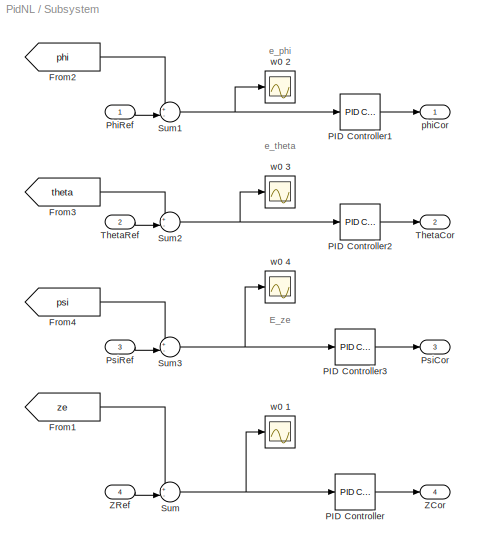
BLOCK [SubSystem] Subsystem
  Ports = [4, 4]
  RequestExecContextInheritance = off
  SID = 319
  Variant = off
BLOCK [From] Subsystem/From1
  GotoTag = ze
  SID = 315
BLOCK [From] Subsystem/From2
  GotoTag = phi
  SID = 316
BLOCK [From] Subsystem/From3
  GotoTag = theta
  SID = 317
BLOCK [From] Subsystem/From4
  GotoTag = psi
  SID = 318
BLOCK [Reference] Subsystem/PID Controller  REF=simulink/Continuous/PID Controller
  AntiWindupMode = none
  Controller = PID
  ControllerParametersSource = internal
  D = -3.74671724354833
  DGainOutDataTypeStr = Inherit: Inherit via internal rule
  DOutDataTypeStr = Inherit: Inherit via internal rule
  DOutMax = []
  DOutMin = []
  DParamDataTypeStr = Inherit: Inherit via internal rule
  DParamMax = []
  DParamMin = []
  DProdOutDataTypeStr = Inherit: Inherit via internal rule
  DifferentiatorICPrevScaledInput = 0
  DifferentiatorOutDataTypeStr = Inherit: Inherit via internal rule
  DifferentiatorOutMax = []
  DifferentiatorOutMin = []
  ExternalReset = none
  FilterContinuousStateAttributes = ''
  FilterMethod = Forward Euler
  FilterOutDataTypeStr = Inherit: Inherit via internal rule
  FilterOutMax = []
  FilterOutMin = []
  FilterRTWStateStorageClass = Auto
  FilterStateMustResolveToSignalObject = off
  Form = Parallel
  I = -0.10856097435728
  IGainOutDataTypeStr = Inherit: Inherit via internal rule
  IOutDataTypeStr = Inherit: Inherit via internal rule
  IOutMax = []
  IOutMin = []
  IParamDataTypeStr = Inherit: Inherit via internal rule
  IParamMax = []
  IParamMin = []
  IProdOutDataTypeStr = Inherit: Inherit via internal rule
  IgnoreLimit = off
  InitialConditionForFilter = 0
  InitialConditionForIntegrator = 0
  InitialConditionSource = internal
  IntegratorContinuousStateAttributes = ''
  IntegratorMethod = Forward Euler
  IntegratorOutDataTypeStr = Inherit: Inherit via internal rule
  IntegratorOutMax = []
  IntegratorOutMin = []
  IntegratorRTWStateStorageClass = Auto
  IntegratorStateMustResolveToSignalObject = off
  Kb = 1
  KbOutDataTypeStr = Inherit: Inherit via internal rule
  KbOutMax = []
  KbOutMin = []
  KbParamDataTypeStr = Inherit: Inherit via internal rule
  KbParamMax = []
  KbParamMin = []
  Kt = 1
  KtOutDataTypeStr = Inherit: Inherit via internal rule
  KtOutMax = []
  KtOutMin = []
  KtParamDataTypeStr = Inherit: Inherit via internal rule
  KtParamMax = []
  KtParamMin = []
  LimitOutput = off
  LinearizeAsGain = off
  LockScale = off
  LowerSaturationLimit = -inf
  N = 25.4035614147579
  NGainOutDataTypeStr = Inherit: Inherit via internal rule
  NOutDataTypeStr = Inherit: Inherit via internal rule
  NOutMax = []
  NOutMin = []
  NParamDataTypeStr = Inherit: Inherit via internal rule
  NParamMax = []
  NParamMin = []
  NProdOutDataTypeStr = Inherit: Inherit via internal rule
  P = -2.81657290050028
  PGainOutDataTypeStr = Inherit: Inherit via internal rule
  POutDataTypeStr = Inherit: Inherit via internal rule
  POutMax = []
  POutMin = []
  PParamDataTypeStr = Inherit: Inherit via internal rule
  PParamMax = []
  PParamMin = []
  PProdOutDataTypeStr = Inherit: Inherit via internal rule
  Ports = [1, 1]
  RndMeth = Floor
  SID = 295
  SampleTime = -1
  SaturateOnIntegerOverflow = off
  SaturationOutDataTypeStr = Inherit: Same as input
  SaturationOutMax = []
  SaturationOutMin = []
  SourceBlock = simulink/Continuous/PID Controller
  SourceType = PID 1dof
  SumAccumDataTypeStr = Inherit: Inherit via internal rule
  SumDAccumDataTypeStr = Inherit: Inherit via internal rule
  SumDOutDataTypeStr = Inherit: Inherit via internal rule
  SumDOutMax = []
  SumDOutMin = []
  SumI1AccumDataTypeStr = Inherit: Inherit via internal rule
  SumI1OutDataTypeStr = Inherit: Inherit via internal rule
  SumI1OutMax = []
  SumI1OutMin = []
  SumI2AccumDataTypeStr = Inherit: Inherit via internal rule
  SumI2OutDataTypeStr = Inherit: Inherit via internal rule
  SumI2OutMax = []
  SumI2OutMin = []
  SumI3AccumDataTypeStr = Inherit: Inherit via internal rule
  SumI3OutDataTypeStr = Inherit: Inherit via internal rule
  SumI3OutMax = []
  SumI3OutMin = []
  SumOutDataTypeStr = Inherit: Inherit via internal rule
  SumOutMax = []
  SumOutMin = []
  TimeDomain = Continuous-time
  TrackingMode = off
  UpperSaturationLimit = inf
  UseFilter = on
  ZeroCross = on
BLOCK [Reference] Subsystem/PID Controller1  REF=simulink/Continuous/PID Controller
  AntiWindupMode = none
  Controller = PID
  ControllerParametersSource = internal
  D = 0.00233719169675889
  DGainOutDataTypeStr = Inherit: Inherit via internal rule
  DOutDataTypeStr = Inherit: Inherit via internal rule
  DOutMax = []
  DOutMin = []
  DParamDataTypeStr = Inherit: Inherit via internal rule
  DParamMax = []
  DParamMin = []
  DProdOutDataTypeStr = Inherit: Inherit via internal rule
  DifferentiatorICPrevScaledInput = 0
  DifferentiatorOutDataTypeStr = Inherit: Inherit via internal rule
  DifferentiatorOutMax = []
  DifferentiatorOutMin = []
  ExternalReset = none
  FilterContinuousStateAttributes = ''
  FilterMethod = Forward Euler
  FilterOutDataTypeStr = Inherit: Inherit via internal rule
  FilterOutMax = []
  FilterOutMin = []
  FilterRTWStateStorageClass = Auto
  FilterStateMustResolveToSignalObject = off
  Form = Parallel
  I = 0.000205170764798032
  IGainOutDataTypeStr = Inherit: Inherit via internal rule
  IOutDataTypeStr = Inherit: Inherit via internal rule
  IOutMax = []
  IOutMin = []
  IParamDataTypeStr = Inherit: Inherit via internal rule
  IParamMax = []
  IParamMin = []
  IProdOutDataTypeStr = Inherit: Inherit via internal rule
  IgnoreLimit = off
  InitialConditionForFilter = 0
  InitialConditionForIntegrator = 0
  InitialConditionSource = internal
  IntegratorContinuousStateAttributes = ''
  IntegratorMethod = Forward Euler
  IntegratorOutDataTypeStr = Inherit: Inherit via internal rule
  IntegratorOutMax = []
  IntegratorOutMin = []
  IntegratorRTWStateStorageClass = Auto
  IntegratorStateMustResolveToSignalObject = off
  Kb = 1
  KbOutDataTypeStr = Inherit: Inherit via internal rule
  KbOutMax = []
  KbOutMin = []
  KbParamDataTypeStr = Inherit: Inherit via internal rule
  KbParamMax = []
  KbParamMin = []
  Kt = 1
  KtOutDataTypeStr = Inherit: Inherit via internal rule
  KtOutMax = []
  KtOutMin = []
  KtParamDataTypeStr = Inherit: Inherit via internal rule
  KtParamMax = []
  KtParamMin = []
  LimitOutput = off
  LinearizeAsGain = off
  LockScale = off
  LowerSaturationLimit = -inf
  N = 31.074421221511
  NGainOutDataTypeStr = Inherit: Inherit via internal rule
  NOutDataTypeStr = Inherit: Inherit via internal rule
  NOutMax = []
  NOutMin = []
  NParamDataTypeStr = Inherit: Inherit via internal rule
  NParamMax = []
  NParamMin = []
  NProdOutDataTypeStr = Inherit: Inherit via internal rule
  P = 0.00227776084894012
  PGainOutDataTypeStr = Inherit: Inherit via internal rule
  POutDataTypeStr = Inherit: Inherit via internal rule
  POutMax = []
  POutMin = []
  PParamDataTypeStr = Inherit: Inherit via internal rule
  PParamMax = []
  PParamMin = []
  PProdOutDataTypeStr = Inherit: Inherit via internal rule
  Ports = [1, 1]
  RndMeth = Floor
  SID = 296
  SampleTime = -1
  SaturateOnIntegerOverflow = off
  SaturationOutDataTypeStr = Inherit: Same as input
  SaturationOutMax = []
  SaturationOutMin = []
  SourceBlock = simulink/Continuous/PID Controller
  SourceType = PID 1dof
  SumAccumDataTypeStr = Inherit: Inherit via internal rule
  SumDAccumDataTypeStr = Inherit: Inherit via internal rule
  SumDOutDataTypeStr = Inherit: Inherit via internal rule
  SumDOutMax = []
  SumDOutMin = []
  SumI1AccumDataTypeStr = Inherit: Inherit via internal rule
  SumI1OutDataTypeStr = Inherit: Inherit via internal rule
  SumI1OutMax = []
  SumI1OutMin = []
  SumI2AccumDataTypeStr = Inherit: Inherit via internal rule
  SumI2OutDataTypeStr = Inherit: Inherit via internal rule
  SumI2OutMax = []
  SumI2OutMin = []
  SumI3AccumDataTypeStr = Inherit: Inherit via internal rule
  SumI3OutDataTypeStr = Inherit: Inherit via internal rule
  SumI3OutMax = []
  SumI3OutMin = []
  SumOutDataTypeStr = Inherit: Inherit via internal rule
  SumOutMax = []
  SumOutMin = []
  TimeDomain = Continuous-time
  TrackingMode = off
  UpperSaturationLimit = inf
  UseFilter = on
  ZeroCross = on
BLOCK [Reference] Subsystem/PID Controller2  REF=simulink/Continuous/PID Controller
  AntiWindupMode = none
  Controller = PID
  ControllerParametersSource = internal
  D = 0.00199688923629926
  DGainOutDataTypeStr = Inherit: Inherit via internal rule
  DOutDataTypeStr = Inherit: Inherit via internal rule
  DOutMax = []
  DOutMin = []
  DParamDataTypeStr = Inherit: Inherit via internal rule
  DParamMax = []
  DParamMin = []
  DProdOutDataTypeStr = Inherit: Inherit via internal rule
  DifferentiatorICPrevScaledInput = 0
  DifferentiatorOutDataTypeStr = Inherit: Inherit via internal rule
  DifferentiatorOutMax = []
  DifferentiatorOutMin = []
  ExternalReset = none
  FilterContinuousStateAttributes = ''
  FilterMethod = Forward Euler
  FilterOutDataTypeStr = Inherit: Inherit via internal rule
  FilterOutMax = []
  FilterOutMin = []
  FilterRTWStateStorageClass = Auto
  FilterStateMustResolveToSignalObject = off
  Form = Parallel
  I = 3.39916753327837e-05
  IGainOutDataTypeStr = Inherit: Inherit via internal rule
  IOutDataTypeStr = Inherit: Inherit via internal rule
  IOutMax = []
  IOutMin = []
  IParamDataTypeStr = Inherit: Inherit via internal rule
  IParamMax = []
  IParamMin = []
  IProdOutDataTypeStr = Inherit: Inherit via internal rule
  IgnoreLimit = off
  InitialConditionForFilter = 0
  InitialConditionForIntegrator = 0
  InitialConditionSource = internal
  IntegratorContinuousStateAttributes = ''
  IntegratorMethod = Forward Euler
  IntegratorOutDataTypeStr = Inherit: Inherit via internal rule
  IntegratorOutMax = []
  IntegratorOutMin = []
  IntegratorRTWStateStorageClass = Auto
  IntegratorStateMustResolveToSignalObject = off
  Kb = 1
  KbOutDataTypeStr = Inherit: Inherit via internal rule
  KbOutMax = []
  KbOutMin = []
  KbParamDataTypeStr = Inherit: Inherit via internal rule
  KbParamMax = []
  KbParamMin = []
  Kt = 1
  KtOutDataTypeStr = Inherit: Inherit via internal rule
  KtOutMax = []
  KtOutMin = []
  KtParamDataTypeStr = Inherit: Inherit via internal rule
  KtParamMax = []
  KtParamMin = []
  LimitOutput = off
  LinearizeAsGain = off
  LockScale = off
  LowerSaturationLimit = -inf
  N = 54.5397025421619
  NGainOutDataTypeStr = Inherit: Inherit via internal rule
  NOutDataTypeStr = Inherit: Inherit via internal rule
  NOutMax = []
  NOutMin = []
  NParamDataTypeStr = Inherit: Inherit via internal rule
  NParamMax = []
  NParamMin = []
  NProdOutDataTypeStr = Inherit: Inherit via internal rule
  P = 0.000563479429623525
  PGainOutDataTypeStr = Inherit: Inherit via internal rule
  POutDataTypeStr = Inherit: Inherit via internal rule
  POutMax = []
  POutMin = []
  PParamDataTypeStr = Inherit: Inherit via internal rule
  PParamMax = []
  PParamMin = []
  PProdOutDataTypeStr = Inherit: Inherit via internal rule
  Ports = [1, 1]
  RndMeth = Floor
  SID = 297
  SampleTime = -1
  SaturateOnIntegerOverflow = off
  SaturationOutDataTypeStr = Inherit: Same as input
  SaturationOutMax = []
  SaturationOutMin = []
  SourceBlock = simulink/Continuous/PID Controller
  SourceType = PID 1dof
  SumAccumDataTypeStr = Inherit: Inherit via internal rule
  SumDAccumDataTypeStr = Inherit: Inherit via internal rule
  SumDOutDataTypeStr = Inherit: Inherit via internal rule
  SumDOutMax = []
  SumDOutMin = []
  SumI1AccumDataTypeStr = Inherit: Inherit via internal rule
  SumI1OutDataTypeStr = Inherit: Inherit via internal rule
  SumI1OutMax = []
  SumI1OutMin = []
  SumI2AccumDataTypeStr = Inherit: Inherit via internal rule
  SumI2OutDataTypeStr = Inherit: Inherit via internal rule
  SumI2OutMax = []
  SumI2OutMin = []
  SumI3AccumDataTypeStr = Inherit: Inherit via internal rule
  SumI3OutDataTypeStr = Inherit: Inherit via internal rule
  SumI3OutMax = []
  SumI3OutMin = []
  SumOutDataTypeStr = Inherit: Inherit via internal rule
  SumOutMax = []
  SumOutMin = []
  TimeDomain = Continuous-time
  TrackingMode = off
  UpperSaturationLimit = inf
  UseFilter = on
  ZeroCross = on
BLOCK [Reference] Subsystem/PID Controller3  REF=simulink/Continuous/PID Controller
  AntiWindupMode = none
  Controller = PID
  ControllerParametersSource = internal
  D = 0.000795936244237723
  DGainOutDataTypeStr = Inherit: Inherit via internal rule
  DOutDataTypeStr = Inherit: Inherit via internal rule
  DOutMax = []
  DOutMin = []
  DParamDataTypeStr = Inherit: Inherit via internal rule
  DParamMax = []
  DParamMin = []
  DProdOutDataTypeStr = Inherit: Inherit via internal rule
  DifferentiatorICPrevScaledInput = 0
  DifferentiatorOutDataTypeStr = Inherit: Inherit via internal rule
  DifferentiatorOutMax = []
  DifferentiatorOutMin = []
  ExternalReset = none
  FilterContinuousStateAttributes = ''
  FilterMethod = Forward Euler
  FilterOutDataTypeStr = Inherit: Inherit via internal rule
  FilterOutMax = []
  FilterOutMin = []
  FilterRTWStateStorageClass = Auto
  FilterStateMustResolveToSignalObject = off
  Form = Parallel
  I = 1.96774564028284e-06
  IGainOutDataTypeStr = Inherit: Inherit via internal rule
  IOutDataTypeStr = Inherit: Inherit via internal rule
  IOutMax = []
  IOutMin = []
  IParamDataTypeStr = Inherit: Inherit via internal rule
  IParamMax = []
  IParamMin = []
  IProdOutDataTypeStr = Inherit: Inherit via internal rule
  IgnoreLimit = off
  InitialConditionForFilter = 0
  InitialConditionForIntegrator = 0
  InitialConditionSource = internal
  IntegratorContinuousStateAttributes = ''
  IntegratorMethod = Forward Euler
  IntegratorOutDataTypeStr = Inherit: Inherit via internal rule
  IntegratorOutMax = []
  IntegratorOutMin = []
  IntegratorRTWStateStorageClass = Auto
  IntegratorStateMustResolveToSignalObject = off
  Kb = 1
  KbOutDataTypeStr = Inherit: Inherit via internal rule
  KbOutMax = []
  KbOutMin = []
  KbParamDataTypeStr = Inherit: Inherit via internal rule
  KbParamMax = []
  KbParamMin = []
  Kt = 1
  KtOutDataTypeStr = Inherit: Inherit via internal rule
  KtOutMax = []
  KtOutMin = []
  KtParamDataTypeStr = Inherit: Inherit via internal rule
  KtParamMax = []
  KtParamMin = []
  LimitOutput = off
  LinearizeAsGain = off
  LockScale = off
  LowerSaturationLimit = -inf
  N = 4.0451280111618
  NGainOutDataTypeStr = Inherit: Inherit via internal rule
  NOutDataTypeStr = Inherit: Inherit via internal rule
  NOutMax = []
  NOutMin = []
  NParamDataTypeStr = Inherit: Inherit via internal rule
  NParamMax = []
  NParamMin = []
  NProdOutDataTypeStr = Inherit: Inherit via internal rule
  P = 0.000131344162662358
  PGainOutDataTypeStr = Inherit: Inherit via internal rule
  POutDataTypeStr = Inherit: Inherit via internal rule
  POutMax = []
  POutMin = []
  PParamDataTypeStr = Inherit: Inherit via internal rule
  PParamMax = []
  PParamMin = []
  PProdOutDataTypeStr = Inherit: Inherit via internal rule
  Ports = [1, 1]
  RndMeth = Floor
  SID = 298
  SampleTime = -1
  SaturateOnIntegerOverflow = off
  SaturationOutDataTypeStr = Inherit: Same as input
  SaturationOutMax = []
  SaturationOutMin = []
  SourceBlock = simulink/Continuous/PID Controller
  SourceType = PID 1dof
  SumAccumDataTypeStr = Inherit: Inherit via internal rule
  SumDAccumDataTypeStr = Inherit: Inherit via internal rule
  SumDOutDataTypeStr = Inherit: Inherit via internal rule
  SumDOutMax = []
  SumDOutMin = []
  SumI1AccumDataTypeStr = Inherit: Inherit via internal rule
  SumI1OutDataTypeStr = Inherit: Inherit via internal rule
  SumI1OutMax = []
  SumI1OutMin = []
  SumI2AccumDataTypeStr = Inherit: Inherit via internal rule
  SumI2OutDataTypeStr = Inherit: Inherit via internal rule
  SumI2OutMax = []
  SumI2OutMin = []
  SumI3AccumDataTypeStr = Inherit: Inherit via internal rule
  SumI3OutDataTypeStr = Inherit: Inherit via internal rule
  SumI3OutMax = []
  SumI3OutMin = []
  SumOutDataTypeStr = Inherit: Inherit via internal rule
  SumOutMax = []
  SumOutMin = []
  TimeDomain = Continuous-time
  TrackingMode = off
  UpperSaturationLimit = inf
  UseFilter = on
  ZeroCross = on
BLOCK [Inport] Subsystem/PhiRef
  IconDisplay = Port number
  SID = 323
BLOCK [Outport] Subsystem/PsiCor
  IconDisplay = Port number
  Port = 3
  SID = 326
BLOCK [Inport] Subsystem/PsiRef
  IconDisplay = Port number
  Port = 3
  SID = 327
BLOCK [Sum] Subsystem/Sum
  IconShape = round
  InputSameDT = off
  Inputs = +-|
  OutDataTypeStr = Inherit: Inherit via internal rule
  Ports = [2, 1]
  SID = 299
  SaturateOnIntegerOverflow = off
BLOCK [Sum] Subsystem/Sum1
  IconShape = round
  InputSameDT = off
  Inputs = +-|
  OutDataTypeStr = Inherit: Inherit via internal rule
  Ports = [2, 1]
  SID = 300
  SaturateOnIntegerOverflow = off
BLOCK [Sum] Subsystem/Sum2
  IconShape = round
  InputSameDT = off
  Inputs = +-|
  OutDataTypeStr = Inherit: Inherit via internal rule
  Ports = [2, 1]
  SID = 301
  SaturateOnIntegerOverflow = off
BLOCK [Sum] Subsystem/Sum3
  IconShape = round
  InputSameDT = off
  Inputs = +-|
  OutDataTypeStr = Inherit: Inherit via internal rule
  Ports = [2, 1]
  SID = 302
  SaturateOnIntegerOverflow = off
BLOCK [Outport] Subsystem/ThetaCor
  IconDisplay = Port number
  Port = 2
  SID = 324
BLOCK [Inport] Subsystem/ThetaRef
  IconDisplay = Port number
  Port = 2
  SID = 325
BLOCK [Outport] Subsystem/ZCor
  IconDisplay = Port number
  Port = 4
  SID = 320
BLOCK [Inport] Subsystem/ZRef
  IconDisplay = Port number
  Port = 4
  SID = 321
BLOCK [Outport] Subsystem/phiCor
  IconDisplay = Port number
  SID = 322
BLOCK [Scope] Subsystem/w0  1
  Ports = [1]
  SID = 303
  ScopeSpecificationString = C++SS(StrPVP('Location','[54, 53, 1367, 767]'),StrPVP('Open','off'),MxPVP('AxesTitles',24,'struct(''axes1'',''%<SignalLabel>'')'),MxPVP('ScopeGraphics',28,'struct(''FigureColor'',''[0.501960784313725 0.501960784313725 0.501960784313725]'',''AxesColor'',''[0 0 0]'',''AxesTickColor'',''[1 1 1]'',''LineColors'',''[0 1 0;1 0 1;0 1 1;1 0 0;0 1 0;0 0 1]'',''LineStyles'',''-|-|-|-|-|-'',''LineWidths'',''...<+327ch>  <repeated x4 — deduplicated; at blocks: w0  1, w0  2, w0  3, w0  4>
BLOCK [Scope] Subsystem/w0  2
  Ports = [1]
  SID = 304
BLOCK [Scope] Subsystem/w0  3
  Ports = [1]
  SID = 305
BLOCK [Scope] Subsystem/w0  4
  Ports = [1]
  SID = 306
BLOCK [SubSystem] XandY
  Ports = [1]
  RequestExecContextInheritance = off
  SID = 458
  Variant = off
BLOCK [SubSystem] XandY/C
  ErrorFcn = Stateflow.Translate.translate
  PermitHierarchicalResolution = ExplicitOnly
  Ports = [1, 1]
  RequestExecContextInheritance = off
  SFBlockType = MATLAB Function
  SID = 169
  TreatAsAtomicUnit = on
  Variant = off
BLOCK [Demux] XandY/C/ Demux 
  Outputs = 1
  Ports = [1, 1]
  SID = 169::30
BLOCK [S-Function] XandY/C/ SFunction 
  EnableBusSupport = off
  FunctionName = sf_sfun
  PortCounts = [1 2]
  Ports = [1, 2]
  SFunctionDeploymentMode = off
  SID = 169::29
  Tag = Stateflow S-Function PidNL 1
BLOCK [Terminator] XandY/C/ Terminator 
  SID = 169::31
BLOCK [Inport] XandY/C/X
  IconDisplay = Port number
  SID = 169::1
BLOCK [Outport] XandY/C/ymis
  IconDisplay = Port number
  SID = 169::5
BLOCK [Inport] XandY/In1
  IconDisplay = Port number
  SID = 459
BLOCK [SubSystem] XandY/Output1
  Ports = [1]
  RequestExecContextInheritance = off
  SID = 122
  Variant = off
BLOCK [Demux] XandY/Output1/Demux3
  DisplayOption = bar
  Ports = [1, 4]
  SID = 203
BLOCK [Demux] XandY/Output1/Demux4
  DisplayOption = bar
  Outputs = 3
  Ports = [1, 3]
  SID = 204
BLOCK [Inport] XandY/Output1/In1
  IconDisplay = Port number
  SID = 123
BLOCK [Mux] XandY/Output1/Mux
  DisplayOption = bar
  Inputs = 3
  Ports = [3, 1]
  SID = 205
BLOCK [Reference] XandY/Output1/R2D  REF=simulink_extras/Transformations/Radians\nto Degrees
  Ports = [1, 1]
  SID = 206
  SourceBlock = simulink_extras/Transformations/Radians\nto Degrees
  SourceType = RadiansToDegrees
BLOCK [Scope] XandY/Output1/y(t)1
  NumInputPorts = 4
  Ports = [4]
  SID = 207
  ScopeSpecificationString = C++SS(StrPVP('Location','[54, 53, 1367, 767]'),StrPVP('Open','off'),MxPVP('AxesTitles',24,'struct(''axes1'',''%<SignalLabel>'',''axes2'',''%<SignalLabel>'',''axes3'',''%<SignalLabel>'',''axes4'',''%<SignalLabel>'')'),MxPVP('ScopeGraphics',28,'struct(''FigureColor'',''[0.501960784313725 0.501960784313725 0.501960784313725]'',''AxesColor'',''[0 0 0]'',''AxesTickColor'',''[1 1 1]'',''LineColors'',''[...<+476ch>
BLOCK [SubSystem] XandY/Selector
  Ports = [1, 1]
  RequestExecContextInheritance = off
  SID = 448
  Variant = off
BLOCK [BusCreator] XandY/Selector/Bus\nCreator
  DisplayOption = bar
  InheritFromInputs = on
  Inputs = 5
  Ports = [5, 1]
  SID = 401
BLOCK [Demux] XandY/Selector/Demux
  DisplayOption = bar
  Outputs = 12
  Ports = [1, 12]
  SID = 402
BLOCK [Inport] XandY/Selector/In1
  IconDisplay = Port number
  SID = 449
BLOCK [Outport] XandY/Selector/Out1
  IconDisplay = Port number
  SID = 450
BLOCK [Goto] XandY/ymis
  GotoTag = Refs
  SID = 461
  TagVisibility = global
ANNOTATION (root): Control
ANNOTATION (root): Manca il controllo sulla posizione
ANNOTATION Ctrl Mix/+ Config Control Mixing: + (plus) Quad Configuration Control Mixing
ANNOTATION Ctrl Mix/+ Config Control Mixing: mc1 = Alt_cor -Psi_cor - The_cor
ANNOTATION Ctrl Mix/+ Config Control Mixing: mc2 = Alt_cor + Psi_cor + Phi_cor
ANNOTATION Ctrl Mix/+ Config Control Mixing: mc3 = Alt_cor - Psi_cor + The_cor
ANNOTATION Ctrl Mix/+ Config Control Mixing: mc4 = Alt_cor + Psi_cor - Phi_cor
ANNOTATION Ctrl Mix/X Config Control Mixing: X - Configuration Quad Control Mixing
ANNOTATION Ctrl Mix/X Config Control Mixing: mc1 = Alt_cor - The_cor - Phi_cor - Psi_cor
ANNOTATION Ctrl Mix/X Config Control Mixing: mc2 = Alt_cor - The_cor + Phi_cor + Psi_cor
ANNOTATION Ctrl Mix/X Config Control Mixing: mc3 = Alt_cor + The_cor + Phi_cor - Psi_cor
ANNOTATION Ctrl Mix/X Config Control Mixing: mc4 = Alt_cor + The_cor - Phi_cor + Psi_cor
ANNOTATION Path: Psi path
ANNOTATION Path: X path
ANNOTATION Path: Y path
ANNOTATION Path: Z path
ANNOTATION Position Controller: Inertial-frame velocity is used as the state to be controlled,\n(as this is what is controlled by attitude)\nthus we find position error in the body frame\nand map this to a body frame desired velocity. This desired\nvelocity is then mapped to a desired attitude.
ANNOTATION Position Controller/Phi Command Control: -1 Gain is required because a \"negative\"\nangle of Phi induces a positive velocity\nin the body frame y direction!
ANNOTATION Subsystem: E_ze
ANNOTATION Subsystem: e_phi
ANNOTATION Subsystem: e_theta
LINE Constant:1 -> Gain:1
NET Ctrl Mix/+ Config Control Mixing/Altitude Correction:1 -> Ctrl Mix/+ Config Control Mixing/Sum2:1, Ctrl Mix/+ Config Control Mixing/Sum4:2
NET Ctrl Mix/+ Config Control Mixing/Phi Correction:1 -> Ctrl Mix/+ Config Control Mixing/Sum11:1, Ctrl Mix/+ Config Control Mixing/Sum8:2
NET Ctrl Mix/+ Config Control Mixing/Psi Correction:1 -> Ctrl Mix/+ Config Control Mixing/Sum2:2, Ctrl Mix/+ Config Control Mixing/Sum4:1
LINE Ctrl Mix/+ Config Control Mixing/Sum11:1 -> Ctrl Mix/+ Config Control Mixing/mc4:1
LINE Ctrl Mix/+ Config Control Mixing/Sum1:1 -> Ctrl Mix/+ Config Control Mixing/mc1:1
NET Ctrl Mix/+ Config Control Mixing/Sum2:1 -> Ctrl Mix/+ Config Control Mixing/Sum1:1, Ctrl Mix/+ Config Control Mixing/Sum3:2
LINE Ctrl Mix/+ Config Control Mixing/Sum3:1 -> Ctrl Mix/+ Config Control Mixing/mc3:1
NET Ctrl Mix/+ Config Control Mixing/Sum4:1 -> Ctrl Mix/+ Config Control Mixing/Sum11:2, Ctrl Mix/+ Config Control Mixing/Sum8:1
LINE Ctrl Mix/+ Config Control Mixing/Sum8:1 -> Ctrl Mix/+ Config Control Mixing/mc2:1
NET Ctrl Mix/+ Config Control Mixing/Theta Correction:1 -> Ctrl Mix/+ Config Control Mixing/Sum1:2, Ctrl Mix/+ Config Control Mixing/Sum3:1
LINE Ctrl Mix/+ Config Control Mixing:1 -> Ctrl Mix/Bus\nCreator:1
LINE Ctrl Mix/+ Config Control Mixing:2 -> Ctrl Mix/Bus\nCreator:2
LINE Ctrl Mix/+ Config Control Mixing:3 -> Ctrl Mix/Bus\nCreator:3
LINE Ctrl Mix/+ Config Control Mixing:4 -> Ctrl Mix/Bus\nCreator:4
LINE Ctrl Mix/Bus\nCreator1:1 -> Ctrl Mix/Switch:3
LINE Ctrl Mix/Bus\nCreator:1 -> Ctrl Mix/Switch:1
LINE Ctrl Mix/Quad Model Type Logical:1 -> Ctrl Mix/Switch:2
LINE Ctrl Mix/Switch:1 -> Ctrl Mix/Out1:1
NET Ctrl Mix/X Config Control Mixing/Altitude (z) Correction:1 -> Ctrl Mix/X Config Control Mixing/Sum2:1, Ctrl Mix/X Config Control Mixing/Sum4:2
NET Ctrl Mix/X Config Control Mixing/Phi Correction:1 -> Ctrl Mix/X Config Control Mixing/Sum11:1, Ctrl Mix/X Config Control Mixing/Sum1:2, Ctrl Mix/X Config Control Mixing/Sum3:1, Ctrl Mix/X Config Control Mixing/Sum8:2
NET Ctrl Mix/X Config Control Mixing/Psi Correction:1 -> Ctrl Mix/X Config Control Mixing/Sum2:2, Ctrl Mix/X Config Control Mixing/Sum4:1
LINE Ctrl Mix/X Config Control Mixing/Sum11:1 -> Ctrl Mix/X Config Control Mixing/Sum7:2
LINE Ctrl Mix/X Config Control Mixing/Sum1:1 -> Ctrl Mix/X Config Control Mixing/Sum5:1
NET Ctrl Mix/X Config Control Mixing/Sum2:1 -> Ctrl Mix/X Config Control Mixing/Sum1:1, Ctrl Mix/X Config Control Mixing/Sum8:1
LINE Ctrl Mix/X Config Control Mixing/Sum3:1 -> Ctrl Mix/X Config Control Mixing/Sum:2
NET Ctrl Mix/X Config Control Mixing/Sum4:1 -> Ctrl Mix/X Config Control Mixing/Sum11:2, Ctrl Mix/X Config Control Mixing/Sum3:2
LINE Ctrl Mix/X Config Control Mixing/Sum5:1 -> Ctrl Mix/X Config Control Mixing/mc1:1
LINE Ctrl Mix/X Config Control Mixing/Sum6:1 -> Ctrl Mix/X Config Control Mixing/mc3:1
LINE Ctrl Mix/X Config Control Mixing/Sum7:1 -> Ctrl Mix/X Config Control Mixing/mc4:1
LINE Ctrl Mix/X Config Control Mixing/Sum8:1 -> Ctrl Mix/X Config Control Mixing/Sum6:1
LINE Ctrl Mix/X Config Control Mixing/Sum:1 -> Ctrl Mix/X Config Control Mixing/mc2:1
NET Ctrl Mix/X Config Control Mixing/Theta Correction:1 -> Ctrl Mix/X Config Control Mixing/Sum5:2, Ctrl Mix/X Config Control Mixing/Sum6:2, Ctrl Mix/X Config Control Mixing/Sum7:1, Ctrl Mix/X Config Control Mixing/Sum:1
LINE Ctrl Mix/X Config Control Mixing:1 -> Ctrl Mix/Bus\nCreator1:1
LINE Ctrl Mix/X Config Control Mixing:2 -> Ctrl Mix/Bus\nCreator1:2
LINE Ctrl Mix/X Config Control Mixing:3 -> Ctrl Mix/Bus\nCreator1:3
LINE Ctrl Mix/X Config Control Mixing:4 -> Ctrl Mix/Bus\nCreator1:4
NET Ctrl Mix/phi:1 -> Ctrl Mix/+ Config Control Mixing:1, Ctrl Mix/X Config Control Mixing:1
NET Ctrl Mix/psi:1 -> Ctrl Mix/+ Config Control Mixing:3, Ctrl Mix/X Config Control Mixing:3
NET Ctrl Mix/theta:1 -> Ctrl Mix/+ Config Control Mixing:2, Ctrl Mix/X Config Control Mixing:2
NET Ctrl Mix/ze:1 -> Ctrl Mix/+ Config Control Mixing:4, Ctrl Mix/X Config Control Mixing:4
LINE Ctrl Mix:1 -> Quadcopter Dynamics:1
LINE Demux5:1 -> Subsystem:1
LINE Demux5:2 -> Subsystem:2
LINE Demux5:3 -> Subsystem:3
LINE Demux5:4 -> Subsystem:4
LINE Path/Bus\nCreator:1 -> Path/Out1:1
LINE Path/From\nWorkspace1:1 -> Path/Bus\nCreator:2
LINE Path/From\nWorkspace2:1 -> Path/Bus\nCreator:3
LINE Path/From\nWorkspace3:1 -> Path/Bus\nCreator:4
LINE Path/From\nWorkspace:1 -> Path/Bus\nCreator:1
LINE Path:1 -> Position Controller:1
NET Position Controller/Bus\nCreator:1 -> Position Controller/Attitude Cmd:1, Position Controller/Goto Quadcopter Dynamics Block:1
LINE Position Controller/Bus\nSelector1:1 -> Position Controller/Error Rotations:3
LINE Position Controller/Bus\nSelector1:2 -> Position Controller/Error Rotations:4
LINE Position Controller/Bus\nSelector1:3 -> Position Controller/Error Rotations:5
LINE Position Controller/Bus\nSelector1:4 -> Position Controller/Theta Command Control:2
LINE Position Controller/Bus\nSelector1:5 -> Position Controller/Phi Command Control:2
LINE Position Controller/Bus\nSelector:1 -> Position Controller/Error Rotations:1
LINE Position Controller/Bus\nSelector:2 -> Position Controller/Error Rotations:2
LINE Position Controller/Bus\nSelector:3 -> Position Controller/Bus\nCreator:4
LINE Position Controller/Bus\nSelector:4 -> Position Controller/Bus\nCreator:3
LINE Position Controller/Error Rotations/Product1:1 -> Position Controller/Error Rotations/Sum4:1
LINE Position Controller/Error Rotations/Product2:1 -> Position Controller/Error Rotations/Sum2:2
LINE Position Controller/Error Rotations/Product3:1 -> Position Controller/Error Rotations/Sum4:2
LINE Position Controller/Error Rotations/Product:1 -> Position Controller/Error Rotations/Sum2:1
LINE Position Controller/Error Rotations/Psi:1 -> Position Controller/Error Rotations/Trigonometric\nFunctions:1
NET Position Controller/Error Rotations/Sum1:1 -> Position Controller/Error Rotations/Product1:1, Position Controller/Error Rotations/Product2:1
LINE Position Controller/Error Rotations/Sum2:1 -> Position Controller/Error Rotations/X Error in body Frame:1
LINE Position Controller/Error Rotations/Sum4:1 -> Position Controller/Error Rotations/Y Error in Body Frame:1
NET Position Controller/Error Rotations/Sum:1 -> Position Controller/Error Rotations/Product3:1, Position Controller/Error Rotations/Product:1
NET Position Controller/Error Rotations/Trigonometric\nFunctions:1 -> Position Controller/Error Rotations/Product2:2, Position Controller/Error Rotations/Product3:2
NET Position Controller/Error Rotations/Trigonometric\nFunctions:2 -> Position Controller/Error Rotations/Product1:2, Position Controller/Error Rotations/Product:2
LINE Position Controller/Error Rotations/X:1 -> Position Controller/Error Rotations/Sum:2
LINE Position Controller/Error Rotations/X_cmd:1 -> Position Controller/Error Rotations/Sum:1
LINE Position Controller/Error Rotations/Y:1 -> Position Controller/Error Rotations/Sum1:2
LINE Position Controller/Error Rotations/Y_cmd:1 -> Position Controller/Error Rotations/Sum1:1
LINE Position Controller/Error Rotations:1 -> Position Controller/Theta Command Control:1
LINE Position Controller/Error Rotations:2 -> Position Controller/Phi Command Control:1
LINE Position Controller/Path Cmd:1 -> Position Controller/Bus\nSelector:1
LINE Position Controller/Phi Command Control/Attitude Limits_Phi:1 -> Position Controller/Phi Command Control/Phi_cmd:1
LINE Position Controller/Phi Command Control/Desired Yb Velocity:1 -> Position Controller/Phi Command Control/Sum3:1
LINE Position Controller/Phi Command Control/Gain:1 -> Position Controller/Phi Command Control/Attitude Limits_Phi:1
LINE Position Controller/Phi Command Control/Kdp:1 -> Position Controller/Phi Command Control/Sum6:2
LINE Position Controller/Phi Command Control/Kpp:1 -> Position Controller/Phi Command Control/Sum6:1
LINE Position Controller/Phi Command Control/Sum3:1 -> Position Controller/Phi Command Control/Kpp:1
LINE Position Controller/Phi Command Control/Sum6:1 -> Position Controller/Phi Command Control/Gain:1
LINE Position Controller/Phi Command Control/V Derivative:1 -> Position Controller/Phi Command Control/Kdp:1
NET Position Controller/Phi Command Control/Yb Velocity:1 -> Position Controller/Phi Command Control/Sum3:2, Position Controller/Phi Command Control/V Derivative:1
LINE Position Controller/Phi Command Control:1 -> Position Controller/Bus\nCreator:1
LINE Position Controller/Theta Command Control/Attitude Limits_Theta:1 -> Position Controller/Theta Command Control/The_cmd:1
LINE Position Controller/Theta Command Control/Desired Xb Velocity:1 -> Position Controller/Theta Command Control/Sum3:1
LINE Position Controller/Theta Command Control/Kdt:1 -> Position Controller/Theta Command Control/Sum6:2
LINE Position Controller/Theta Command Control/Kpt:1 -> Position Controller/Theta Command Control/Sum6:1
LINE Position Controller/Theta Command Control/Sum3:1 -> Position Controller/Theta Command Control/Kpt:1
LINE Position Controller/Theta Command Control/Sum6:1 -> Position Controller/Theta Command Control/Attitude Limits_Theta:1
LINE Position Controller/Theta Command Control/U Derivative:1 -> Position Controller/Theta Command Control/Kdt:1
NET Position Controller/Theta Command Control/Xb Velocity:1 -> Position Controller/Theta Command Control/Sum3:2, Position Controller/Theta Command Control/U Derivative:1
LINE Position Controller/Theta Command Control:1 -> Position Controller/Bus\nCreator:2
LINE Position Controller/y(t):1 -> Position Controller/Bus\nSelector1:1
LINE Position Controller:1 -> Demux5:1
LINE Quadcopter Dynamics/Motors/DZ1:1 -> Quadcopter Dynamics/Motors/Motore 4:1
LINE Quadcopter Dynamics/Motors/DZ2:1 -> Quadcopter Dynamics/Motors/Motore 2:1
LINE Quadcopter Dynamics/Motors/DZ3:1 -> Quadcopter Dynamics/Motors/Motore 3:1
LINE Quadcopter Dynamics/Motors/DZ:1 -> Quadcopter Dynamics/Motors/Motore 1:1
NET Quadcopter Dynamics/Motors/Demux5:1 -> Quadcopter Dynamics/Motors/Sat:1, Quadcopter Dynamics/Motors/ws1:1
LINE Quadcopter Dynamics/Motors/Demux5:2 -> Quadcopter Dynamics/Motors/Sat3:1
LINE Quadcopter Dynamics/Motors/Demux5:3 -> Quadcopter Dynamics/Motors/Sat1:1
LINE Quadcopter Dynamics/Motors/Demux5:4 -> Quadcopter Dynamics/Motors/Sat2:1
NET Quadcopter Dynamics/Motors/Motore 1:1 -> Quadcopter Dynamics/Motors/Mux:1, Quadcopter Dynamics/Motors/ws:1
LINE Quadcopter Dynamics/Motors/Motore 2:1 -> Quadcopter Dynamics/Motors/Mux:3
LINE Quadcopter Dynamics/Motors/Motore 3:1 -> Quadcopter Dynamics/Motors/Mux:4
LINE Quadcopter Dynamics/Motors/Motore 4:1 -> Quadcopter Dynamics/Motors/Mux:2
LINE Quadcopter Dynamics/Motors/Mux:1 -> Quadcopter Dynamics/Motors/w:1
LINE Quadcopter Dynamics/Motors/Sat1:1 -> Quadcopter Dynamics/Motors/DZ2:1
LINE Quadcopter Dynamics/Motors/Sat2:1 -> Quadcopter Dynamics/Motors/DZ3:1
LINE Quadcopter Dynamics/Motors/Sat3:1 -> Quadcopter Dynamics/Motors/DZ1:1
LINE Quadcopter Dynamics/Motors/Sat:1 -> Quadcopter Dynamics/Motors/DZ:1
LINE Quadcopter Dynamics/Motors/wRif:1 -> Quadcopter Dynamics/Motors/Demux5:1
LINE Quadcopter Dynamics/Motors:1 -> Quadcopter Dynamics/WtoTreal:1
LINE Quadcopter Dynamics/Tenzo NL/6dofDynamics/6DoF (Euler Angles):1 -> Quadcopter Dynamics/Tenzo NL/6dofDynamics/Out1:1
LINE Quadcopter Dynamics/Tenzo NL/6dofDynamics/6DoF (Euler Angles):2 -> Quadcopter Dynamics/Tenzo NL/6dofDynamics/Out2:1
LINE Quadcopter Dynamics/Tenzo NL/6dofDynamics/6DoF (Euler Angles):3 -> Quadcopter Dynamics/Tenzo NL/6dofDynamics/Out3:1
LINE Quadcopter Dynamics/Tenzo NL/6dofDynamics/6DoF (Euler Angles):4 -> Quadcopter Dynamics/Tenzo NL/6dofDynamics/Out4:1
LINE Quadcopter Dynamics/Tenzo NL/6dofDynamics/6DoF (Euler Angles):5 -> Quadcopter Dynamics/Tenzo NL/6dofDynamics/Out5:1
LINE Quadcopter Dynamics/Tenzo NL/6dofDynamics/6DoF (Euler Angles):6 -> Quadcopter Dynamics/Tenzo NL/6dofDynamics/Out6:1
LINE Quadcopter Dynamics/Tenzo NL/6dofDynamics/6DoF (Euler Angles):7 -> Quadcopter Dynamics/Tenzo NL/6dofDynamics/Out7:1
LINE Quadcopter Dynamics/Tenzo NL/6dofDynamics/6DoF (Euler Angles):8 -> Quadcopter Dynamics/Tenzo NL/6dofDynamics/Out8:1
LINE Quadcopter Dynamics/Tenzo NL/6dofDynamics/In1:1 -> Quadcopter Dynamics/Tenzo NL/6dofDynamics/6DoF (Euler Angles):1
LINE Quadcopter Dynamics/Tenzo NL/6dofDynamics/In2:1 -> Quadcopter Dynamics/Tenzo NL/6dofDynamics/6DoF (Euler Angles):2
LINE Quadcopter Dynamics/Tenzo NL/6dofDynamics:1 -> Quadcopter Dynamics/Tenzo NL/order:1
LINE Quadcopter Dynamics/Tenzo NL/6dofDynamics:2 -> Quadcopter Dynamics/Tenzo NL/order:2
LINE Quadcopter Dynamics/Tenzo NL/6dofDynamics:3 -> Quadcopter Dynamics/Tenzo NL/order:3
LINE Quadcopter Dynamics/Tenzo NL/6dofDynamics:4 -> Quadcopter Dynamics/Tenzo NL/order:4
LINE Quadcopter Dynamics/Tenzo NL/6dofDynamics:5 -> Quadcopter Dynamics/Tenzo NL/order:5
LINE Quadcopter Dynamics/Tenzo NL/6dofDynamics:6 -> Quadcopter Dynamics/Tenzo NL/order:6
LINE Quadcopter Dynamics/Tenzo NL/6dofDynamics:7 -> Quadcopter Dynamics/Tenzo NL/order:7
LINE Quadcopter Dynamics/Tenzo NL/6dofDynamics:8 -> Quadcopter Dynamics/Tenzo NL/order:8
LINE Quadcopter Dynamics/Tenzo NL/TorquesForces/Demux1:1 -> Quadcopter Dynamics/Tenzo NL/TorquesForces/zSelector:1
LINE Quadcopter Dynamics/Tenzo NL/TorquesForces/Demux1:2 -> Quadcopter Dynamics/Tenzo NL/TorquesForces/Mux:1
LINE Quadcopter Dynamics/Tenzo NL/TorquesForces/Demux1:3 -> Quadcopter Dynamics/Tenzo NL/TorquesForces/Mux:2
LINE Quadcopter Dynamics/Tenzo NL/TorquesForces/Demux1:4 -> Quadcopter Dynamics/Tenzo NL/TorquesForces/Mux:3
LINE Quadcopter Dynamics/Tenzo NL/TorquesForces/Demux2:1 -> Quadcopter Dynamics/Tenzo NL/TorquesForces/Scope:1
LINE Quadcopter Dynamics/Tenzo NL/TorquesForces/Demux2:2 -> Quadcopter Dynamics/Tenzo NL/TorquesForces/Scope:2
LINE Quadcopter Dynamics/Tenzo NL/TorquesForces/Demux2:3 -> Quadcopter Dynamics/Tenzo NL/TorquesForces/Scope:3
LINE Quadcopter Dynamics/Tenzo NL/TorquesForces/Demux6:1 -> Quadcopter Dynamics/Tenzo NL/TorquesForces/Thrust:1
LINE Quadcopter Dynamics/Tenzo NL/TorquesForces/Demux6:2 -> Quadcopter Dynamics/Tenzo NL/TorquesForces/Thrust:2
NET Quadcopter Dynamics/Tenzo NL/TorquesForces/Demux6:3 -> Quadcopter Dynamics/Tenzo NL/TorquesForces/Ext Forces:3, Quadcopter Dynamics/Tenzo NL/TorquesForces/Thrust:3
LINE Quadcopter Dynamics/Tenzo NL/TorquesForces/Demux7:1 -> Quadcopter Dynamics/Tenzo NL/TorquesForces/Scope2:1
LINE Quadcopter Dynamics/Tenzo NL/TorquesForces/Demux7:2 -> Quadcopter Dynamics/Tenzo NL/TorquesForces/Scope2:2
LINE Quadcopter Dynamics/Tenzo NL/TorquesForces/Demux7:3 -> Quadcopter Dynamics/Tenzo NL/TorquesForces/Scope2:3
NET Quadcopter Dynamics/Tenzo NL/TorquesForces/From1:1 -> Quadcopter Dynamics/Tenzo NL/TorquesForces/Ext Forces1:1, Quadcopter Dynamics/Tenzo NL/TorquesForces/Inflow:1
LINE Quadcopter Dynamics/Tenzo NL/TorquesForces/From:1 -> Quadcopter Dynamics/Tenzo NL/TorquesForces/Matrix Multiply:1
NET Quadcopter Dynamics/Tenzo NL/TorquesForces/Inflow:1 -> Quadcopter Dynamics/Tenzo NL/TorquesForces/Ext Forces:1, Quadcopter Dynamics/Tenzo NL/TorquesForces/Sum:1
LINE Quadcopter Dynamics/Tenzo NL/TorquesForces/Inputs:1 -> Quadcopter Dynamics/Tenzo NL/TorquesForces/Demux1:1
LINE Quadcopter Dynamics/Tenzo NL/TorquesForces/Mass:1 -> Quadcopter Dynamics/Tenzo NL/TorquesForces/gravity:1
NET Quadcopter Dynamics/Tenzo NL/TorquesForces/Matrix Multiply:1 -> Quadcopter Dynamics/Tenzo NL/TorquesForces/Ext Forces:2, Quadcopter Dynamics/Tenzo NL/TorquesForces/Peso:1, Quadcopter Dynamics/Tenzo NL/TorquesForces/Sum:2
NET Quadcopter Dynamics/Tenzo NL/TorquesForces/Mux:1 -> Quadcopter Dynamics/Tenzo NL/TorquesForces/Demux2:1, Quadcopter Dynamics/Tenzo NL/TorquesForces/Torques\n:1
NET Quadcopter Dynamics/Tenzo NL/TorquesForces/Sum:1 -> Quadcopter Dynamics/Tenzo NL/TorquesForces/Demux7:1, Quadcopter Dynamics/Tenzo NL/TorquesForces/Forces:1
NET Quadcopter Dynamics/Tenzo NL/TorquesForces/gravity:1 -> Quadcopter Dynamics/Tenzo NL/TorquesForces/Matrix Multiply:2, Quadcopter Dynamics/Tenzo NL/TorquesForces/Peso:2
NET Quadcopter Dynamics/Tenzo NL/TorquesForces/zSelector:1 -> Quadcopter Dynamics/Tenzo NL/TorquesForces/Demux6:1, Quadcopter Dynamics/Tenzo NL/TorquesForces/Sum:3
LINE Quadcopter Dynamics/Tenzo NL/TorquesForces:1 -> Quadcopter Dynamics/Tenzo NL/6dofDynamics:1
LINE Quadcopter Dynamics/Tenzo NL/TorquesForces:2 -> Quadcopter Dynamics/Tenzo NL/6dofDynamics:2
LINE Quadcopter Dynamics/Tenzo NL/Yinertial:1 -> Quadcopter Dynamics/Tenzo NL/TorquesForces:1
NET Quadcopter Dynamics/Tenzo NL/order/Demux3:1 -> Quadcopter Dynamics/Tenzo NL/order/Goto2:1, Quadcopter Dynamics/Tenzo NL/order/Mux1:1
NET Quadcopter Dynamics/Tenzo NL/order/Demux3:2 -> Quadcopter Dynamics/Tenzo NL/order/Goto3:1, Quadcopter Dynamics/Tenzo NL/order/Mux1:2
NET Quadcopter Dynamics/Tenzo NL/order/Demux3:3 -> Quadcopter Dynamics/Tenzo NL/order/Goto7:1, Quadcopter Dynamics/Tenzo NL/order/Mux1:3
NET Quadcopter Dynamics/Tenzo NL/order/Demux4:1 -> Quadcopter Dynamics/Tenzo NL/order/Goto4:1, Quadcopter Dynamics/Tenzo NL/order/Mux1:7
NET Quadcopter Dynamics/Tenzo NL/order/Demux4:2 -> Quadcopter Dynamics/Tenzo NL/order/Goto5:1, Quadcopter Dynamics/Tenzo NL/order/Mux1:8
NET Quadcopter Dynamics/Tenzo NL/order/Demux4:3 -> Quadcopter Dynamics/Tenzo NL/order/Goto6:1, Quadcopter Dynamics/Tenzo NL/order/Mux1:9
LINE Quadcopter Dynamics/Tenzo NL/order/Demux5:1 -> Quadcopter Dynamics/Tenzo NL/order/Mux1:10
LINE Quadcopter Dynamics/Tenzo NL/order/Demux5:2 -> Quadcopter Dynamics/Tenzo NL/order/Mux1:11
LINE Quadcopter Dynamics/Tenzo NL/order/Demux5:3 -> Quadcopter Dynamics/Tenzo NL/order/Mux1:12
LINE Quadcopter Dynamics/Tenzo NL/order/Demux:1 -> Quadcopter Dynamics/Tenzo NL/order/Mux1:4
LINE Quadcopter Dynamics/Tenzo NL/order/Demux:2 -> Quadcopter Dynamics/Tenzo NL/order/Mux1:5
LINE Quadcopter Dynamics/Tenzo NL/order/Demux:3 -> Quadcopter Dynamics/Tenzo NL/order/Mux1:6
LINE Quadcopter Dynamics/Tenzo NL/order/In1:1 -> Quadcopter Dynamics/Tenzo NL/order/Demux:1
LINE Quadcopter Dynamics/Tenzo NL/order/In2:1 -> Quadcopter Dynamics/Tenzo NL/order/Demux3:1
LINE Quadcopter Dynamics/Tenzo NL/order/In3:1 -> Quadcopter Dynamics/Tenzo NL/order/Demux4:1
LINE Quadcopter Dynamics/Tenzo NL/order/In4:1 -> Quadcopter Dynamics/Tenzo NL/order/Goto:1
LINE Quadcopter Dynamics/Tenzo NL/order/In5:1 -> Quadcopter Dynamics/Tenzo NL/order/Goto1:1
LINE Quadcopter Dynamics/Tenzo NL/order/In6:1 -> Quadcopter Dynamics/Tenzo NL/order/Demux5:1
LINE Quadcopter Dynamics/Tenzo NL/order/In7:1 -> Quadcopter Dynamics/Tenzo NL/order/Terminator1:1
LINE Quadcopter Dynamics/Tenzo NL/order/In8:1 -> Quadcopter Dynamics/Tenzo NL/order/Terminator:1
LINE Quadcopter Dynamics/Tenzo NL/order/Mux1:1 -> Quadcopter Dynamics/Tenzo NL/order/State:1
LINE Quadcopter Dynamics/Tenzo NL/order:1 -> Quadcopter Dynamics/Tenzo NL/State:1
LINE Quadcopter Dynamics/Tenzo NL:1 -> Quadcopter Dynamics/State:1
LINE Quadcopter Dynamics/WtoTreal/Demux:1 -> Quadcopter Dynamics/WtoTreal/SquareGains:1
LINE Quadcopter Dynamics/WtoTreal/Demux:2 -> Quadcopter Dynamics/WtoTreal/SquareGains:2
LINE Quadcopter Dynamics/WtoTreal/Demux:3 -> Quadcopter Dynamics/WtoTreal/SquareGains:3
LINE Quadcopter Dynamics/WtoTreal/Demux:4 -> Quadcopter Dynamics/WtoTreal/SquareGains:4
LINE Quadcopter Dynamics/WtoTreal/Mixer/Add1:1 -> Quadcopter Dynamics/WtoTreal/Mixer/Gain:1
LINE Quadcopter Dynamics/WtoTreal/Mixer/Add2:1 -> Quadcopter Dynamics/WtoTreal/Mixer/Gain5:1
LINE Quadcopter Dynamics/WtoTreal/Mixer/Add3:1 -> Quadcopter Dynamics/WtoTreal/Mixer/Gain6:1
NET Quadcopter Dynamics/WtoTreal/Mixer/Add:1 -> Quadcopter Dynamics/WtoTreal/Mixer/F:1, Quadcopter Dynamics/WtoTreal/Mixer/Out1:1
NET Quadcopter Dynamics/WtoTreal/Mixer/Gain5:1 -> Quadcopter Dynamics/WtoTreal/Mixer/Mthe:1, Quadcopter Dynamics/WtoTreal/Mixer/Out3:1
NET Quadcopter Dynamics/WtoTreal/Mixer/Gain6:1 -> Quadcopter Dynamics/WtoTreal/Mixer/Mpsi:1, Quadcopter Dynamics/WtoTreal/Mixer/Out4:1
NET Quadcopter Dynamics/WtoTreal/Mixer/Gain:1 -> Quadcopter Dynamics/WtoTreal/Mixer/Mphi:1, Quadcopter Dynamics/WtoTreal/Mixer/Out2:1
NET Quadcopter Dynamics/WtoTreal/Mixer/In1:1 -> Quadcopter Dynamics/WtoTreal/Mixer/Add2:1, Quadcopter Dynamics/WtoTreal/Mixer/Add3:1, Quadcopter Dynamics/WtoTreal/Mixer/Add:1
NET Quadcopter Dynamics/WtoTreal/Mixer/In2:1 -> Quadcopter Dynamics/WtoTreal/Mixer/Add1:1, Quadcopter Dynamics/WtoTreal/Mixer/Add3:2, Quadcopter Dynamics/WtoTreal/Mixer/Add:2
NET Quadcopter Dynamics/WtoTreal/Mixer/In3:1 -> Quadcopter Dynamics/WtoTreal/Mixer/Add2:2, Quadcopter Dynamics/WtoTreal/Mixer/Add3:3, Quadcopter Dynamics/WtoTreal/Mixer/Add:3
NET Quadcopter Dynamics/WtoTreal/Mixer/In4:1 -> Quadcopter Dynamics/WtoTreal/Mixer/Add1:2, Quadcopter Dynamics/WtoTreal/Mixer/Add3:4, Quadcopter Dynamics/WtoTreal/Mixer/Add:4
LINE Quadcopter Dynamics/WtoTreal/Mixer:1 -> Quadcopter Dynamics/WtoTreal/Mux:1
LINE Quadcopter Dynamics/WtoTreal/Mixer:2 -> Quadcopter Dynamics/WtoTreal/Mux:2
LINE Quadcopter Dynamics/WtoTreal/Mixer:3 -> Quadcopter Dynamics/WtoTreal/Mux:3
LINE Quadcopter Dynamics/WtoTreal/Mixer:4 -> Quadcopter Dynamics/WtoTreal/Mux:4
LINE Quadcopter Dynamics/WtoTreal/Mux:1 -> Quadcopter Dynamics/WtoTreal/U(t):1
NET Quadcopter Dynamics/WtoTreal/SquareGains/ :1 -> Quadcopter Dynamics/WtoTreal/SquareGains/F1:2, Quadcopter Dynamics/WtoTreal/SquareGains/Gain1:1
LINE Quadcopter Dynamics/WtoTreal/SquareGains/ \n\n:1 -> Quadcopter Dynamics/WtoTreal/SquareGains/Gain2:1
LINE Quadcopter Dynamics/WtoTreal/SquareGains/.  :1 -> Quadcopter Dynamics/WtoTreal/SquareGains/Gain3:1
LINE Quadcopter Dynamics/WtoTreal/SquareGains/..:1 -> Quadcopter Dynamics/WtoTreal/SquareGains/Gain4:1
LINE Quadcopter Dynamics/WtoTreal/SquareGains/Gain1:1 -> Quadcopter Dynamics/WtoTreal/SquareGains/Out1:1
LINE Quadcopter Dynamics/WtoTreal/SquareGains/Gain2:1 -> Quadcopter Dynamics/WtoTreal/SquareGains/Out2:1
LINE Quadcopter Dynamics/WtoTreal/SquareGains/Gain3:1 -> Quadcopter Dynamics/WtoTreal/SquareGains/Out3:1
LINE Quadcopter Dynamics/WtoTreal/SquareGains/Gain4:1 -> Quadcopter Dynamics/WtoTreal/SquareGains/Out4:1
NET Quadcopter Dynamics/WtoTreal/SquareGains/w1:1 -> Quadcopter Dynamics/WtoTreal/SquareGains/ :1, Quadcopter Dynamics/WtoTreal/SquareGains/F1:1
LINE Quadcopter Dynamics/WtoTreal/SquareGains/w2:1 -> Quadcopter Dynamics/WtoTreal/SquareGains/ \n\n:1
LINE Quadcopter Dynamics/WtoTreal/SquareGains/w3:1 -> Quadcopter Dynamics/WtoTreal/SquareGains/.  :1
LINE Quadcopter Dynamics/WtoTreal/SquareGains/w4:1 -> Quadcopter Dynamics/WtoTreal/SquareGains/..:1
LINE Quadcopter Dynamics/WtoTreal/SquareGains:1 -> Quadcopter Dynamics/WtoTreal/Mixer:1
LINE Quadcopter Dynamics/WtoTreal/SquareGains:2 -> Quadcopter Dynamics/WtoTreal/Mixer:2
LINE Quadcopter Dynamics/WtoTreal/SquareGains:3 -> Quadcopter Dynamics/WtoTreal/Mixer:3
LINE Quadcopter Dynamics/WtoTreal/SquareGains:4 -> Quadcopter Dynamics/WtoTreal/Mixer:4
LINE Quadcopter Dynamics/WtoTreal/w(t):1 -> Quadcopter Dynamics/WtoTreal/Demux:1
LINE Quadcopter Dynamics/WtoTreal:1 -> Quadcopter Dynamics/Tenzo NL:1
LINE Quadcopter Dynamics/wRif:1 -> Quadcopter Dynamics/Motors:1
LINE Quadcopter Dynamics:1 -> XandY:1
LINE Signal Builder/Bus Creator:1 -> Signal Builder/Bus:1
LINE Signal Builder/FromWs:1 -> Signal Builder/Subsystem:1
LINE Signal Builder/Subsystem/Demux:1 -> Signal Builder/Subsystem/Ze:1
LINE Signal Builder/Subsystem/Demux:2 -> Signal Builder/Subsystem/vZe:1
LINE Signal Builder/Subsystem/Demux:3 -> Signal Builder/Subsystem/phi:1
LINE Signal Builder/Subsystem/Demux:4 -> Signal Builder/Subsystem/theta:1
LINE Signal Builder/Subsystem/Demux:5 -> Signal Builder/Subsystem/Psi:1
LINE Signal Builder/Subsystem/Demux:6 -> Signal Builder/Subsystem/wPhi:1
LINE Signal Builder/Subsystem/Demux:7 -> Signal Builder/Subsystem/wTheta:1
LINE Signal Builder/Subsystem/Demux:8 -> Signal Builder/Subsystem/wPsi:1
LINE Signal Builder/Subsystem/In1:1 -> Signal Builder/Subsystem/Demux:1
LINE Signal Builder/Subsystem:1 -> Signal Builder/Bus Creator:1
LINE Signal Builder/Subsystem:2 -> Signal Builder/Bus Creator:2
LINE Signal Builder/Subsystem:3 -> Signal Builder/Bus Creator:3
LINE Signal Builder/Subsystem:4 -> Signal Builder/Bus Creator:4
LINE Signal Builder/Subsystem:5 -> Signal Builder/Bus Creator:5
LINE Signal Builder/Subsystem:6 -> Signal Builder/Bus Creator:6
LINE Signal Builder/Subsystem:7 -> Signal Builder/Bus Creator:7
LINE Signal Builder/Subsystem:8 -> Signal Builder/Bus Creator:8
LINE Subsystem/From1:1 -> Subsystem/Sum:1
LINE Subsystem/From2:1 -> Subsystem/Sum1:1
LINE Subsystem/From3:1 -> Subsystem/Sum2:1
LINE Subsystem/From4:1 -> Subsystem/Sum3:1
LINE Subsystem/PID Controller1:1 -> Subsystem/phiCor:1
LINE Subsystem/PID Controller2:1 -> Subsystem/ThetaCor:1
LINE Subsystem/PID Controller3:1 -> Subsystem/PsiCor:1
LINE Subsystem/PID Controller:1 -> Subsystem/ZCor:1
LINE Subsystem/PhiRef:1 -> Subsystem/Sum1:2
LINE Subsystem/PsiRef:1 -> Subsystem/Sum3:2
NET Subsystem/Sum1:1 -> Subsystem/PID Controller1:1, Subsystem/w0  2:1
NET Subsystem/Sum2:1 -> Subsystem/PID Controller2:1, Subsystem/w0  3:1
NET Subsystem/Sum3:1 -> Subsystem/PID Controller3:1, Subsystem/w0  4:1
NET Subsystem/Sum:1 -> Subsystem/PID Controller:1, Subsystem/w0  1:1
LINE Subsystem/ThetaRef:1 -> Subsystem/Sum2:2
LINE Subsystem/ZRef:1 -> Subsystem/Sum:2
LINE Subsystem:1 -> Ctrl Mix:1
LINE Subsystem:2 -> Ctrl Mix:2
LINE Subsystem:3 -> Ctrl Mix:3
LINE Subsystem:4 -> Ctrl Mix:4
LINE XandY/C/ Demux :1 -> XandY/C/ Terminator :1
LINE XandY/C/ SFunction :1 -> XandY/C/ Demux :1
LINE XandY/C/ SFunction :2 -> XandY/C/ymis:1
LINE XandY/C/X:1 -> XandY/C/ SFunction :1
LINE XandY/C:1 -> XandY/Output1:1
NET XandY/In1:1 -> XandY/C:1, XandY/Selector:1
LINE XandY/Output1/Demux3:1 -> XandY/Output1/Mux:1
LINE XandY/Output1/Demux3:2 -> XandY/Output1/Mux:2
LINE XandY/Output1/Demux3:3 -> XandY/Output1/Mux:3
LINE XandY/Output1/Demux3:4 -> XandY/Output1/y(t)1:4
LINE XandY/Output1/Demux4:1 -> XandY/Output1/y(t)1:1
LINE XandY/Output1/Demux4:2 -> XandY/Output1/y(t)1:2
LINE XandY/Output1/Demux4:3 -> XandY/Output1/y(t)1:3
LINE XandY/Output1/In1:1 -> XandY/Output1/Demux3:1
LINE XandY/Output1/Mux:1 -> XandY/Output1/R2D:1
LINE XandY/Output1/R2D:1 -> XandY/Output1/Demux4:1
LINE XandY/Selector/Bus\nCreator:1 -> XandY/Selector/Out1:1
LINE XandY/Selector/Demux:1 -> XandY/Selector/Bus\nCreator:1
LINE XandY/Selector/Demux:10 -> XandY/Selector/Bus\nCreator:4
LINE XandY/Selector/Demux:11 -> XandY/Selector/Bus\nCreator:5
LINE XandY/Selector/Demux:2 -> XandY/Selector/Bus\nCreator:2
LINE XandY/Selector/Demux:9 -> XandY/Selector/Bus\nCreator:3
LINE XandY/Selector/In1:1 -> XandY/Selector/Demux:1
LINE XandY/Selector:1 -> XandY/ymis:1
note: NET lines group one-source signal fan-out (src -> all destinations, sorted); 1:1 wires keep LINE
CHART XandY/C states=1 transitions=1
  STATE_LABEL 'eML_blk_kernel()'
